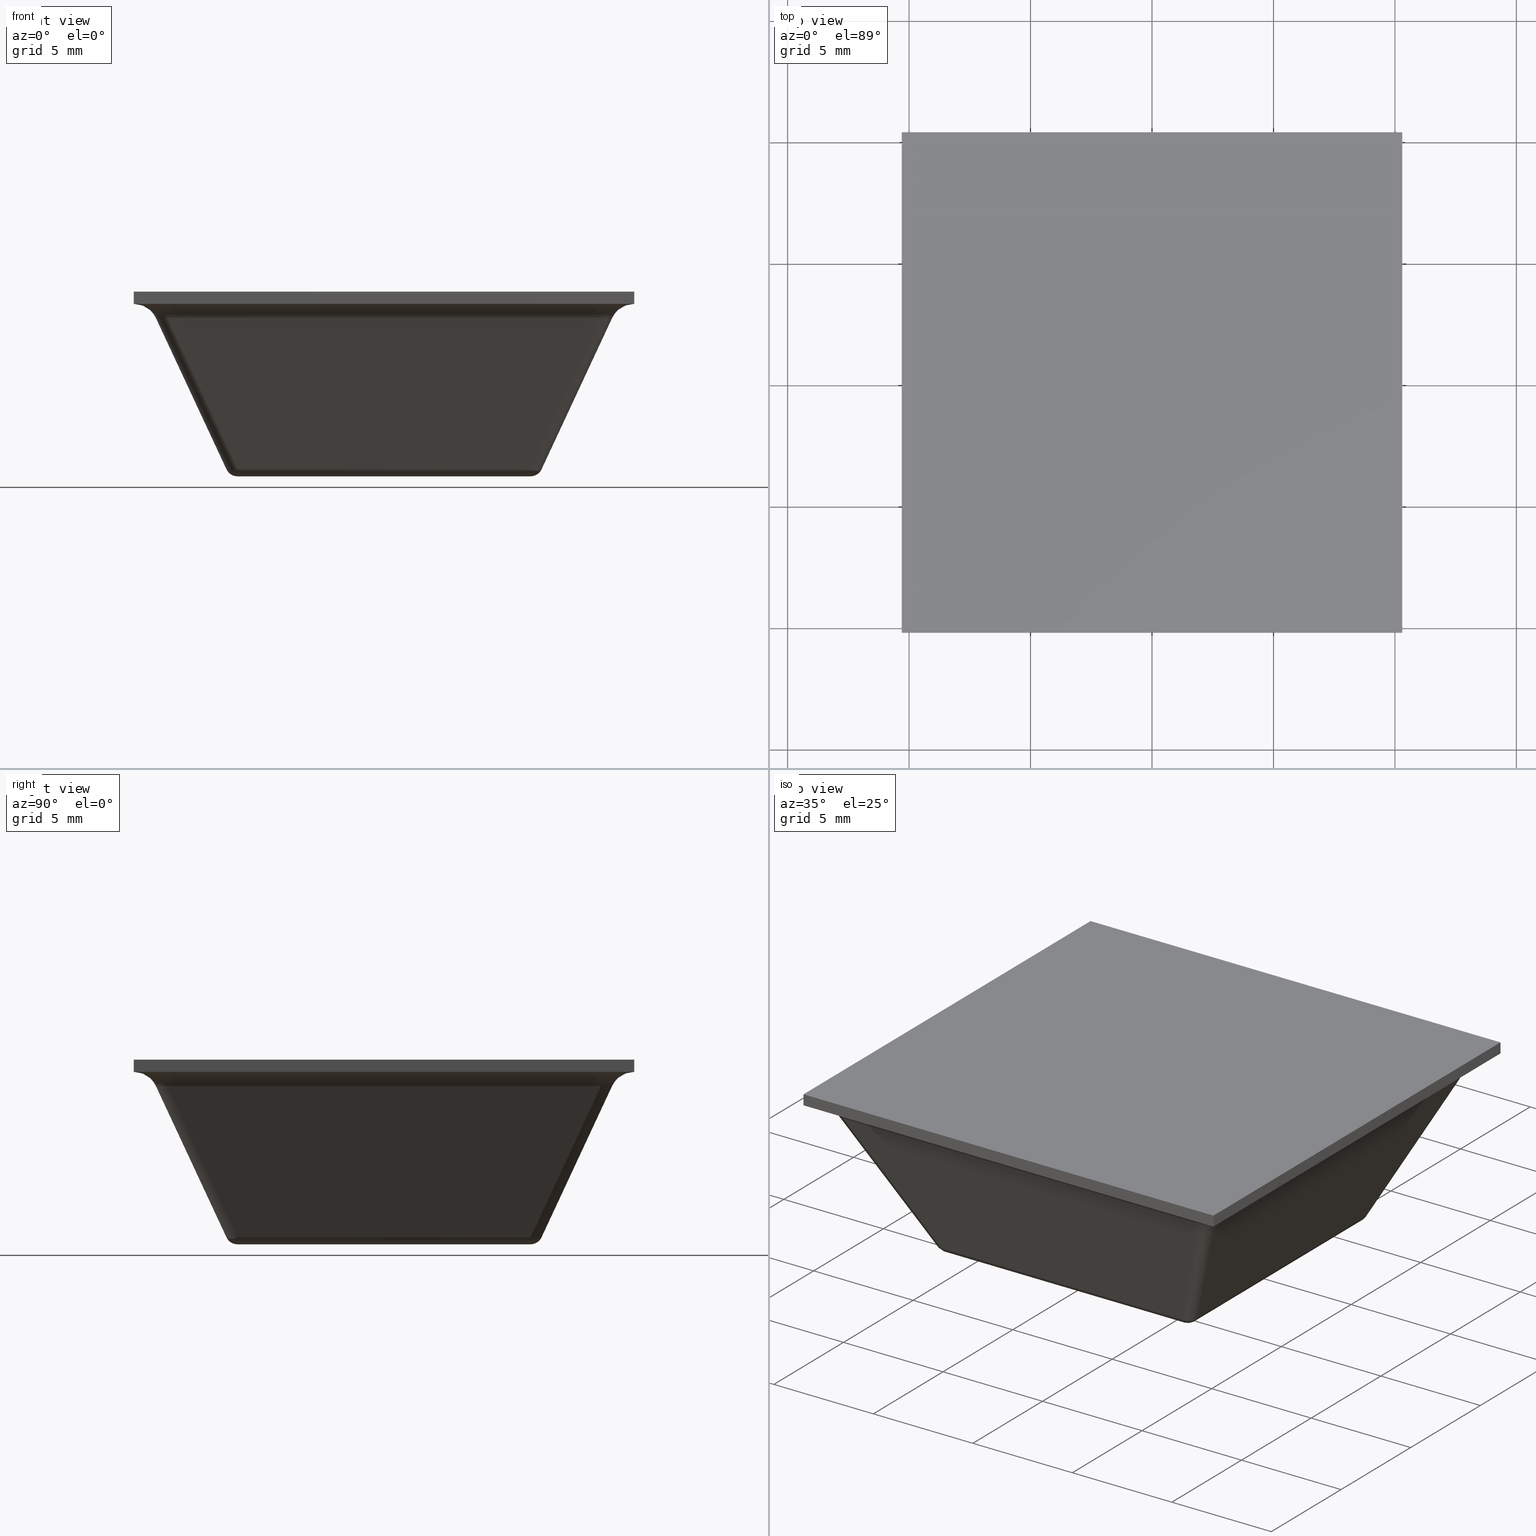
[diagram: canonical four-view strip — front | top / right | iso, engineering-drawing reading convention]
A machine part, canonical four-view strip (front | top / right | iso — engineering-drawing reading convention). The complete STEP part file that produces these views, byte-faithful:
ISO-10303-21;
HEADER;
/****************************************************************
 * Generated by software with PDE/Lib inside                    *
 * PDElib Version 4.4.1-0003, patched  Thursday August 19 11:58 *
 * International Technegroup Inc. (www.iti-oh.com)              *
 ****************************************************************/
FILE_DESCRIPTION((''),'2;1');
FILE_NAME('','2005-12-14T15:42:59',(''),(''),'','CADfix','');
FILE_SCHEMA(('AUTOMOTIVE_DESIGN'));
ENDSEC;
DATA;
#5=APPLICATION_CONTEXT('automotive design');
#6=APPLICATION_PROTOCOL_DEFINITION('Draft International Standard','automotive_design',1998,#5);
#7=PRODUCT_CONTEXT('None',#5,'mechanical');
#8=PRODUCT('rubber foot','','None',(#7));
#9=PRODUCT_RELATED_PRODUCT_CATEGORY('part','description',(#8));
#10=PRODUCT_DEFINITION_FORMATION('None','None',#8);
#11=PRODUCT_DEFINITION_CONTEXT('part definition',#5,'design');
#12=PRODUCT_DEFINITION('None','None',#10,#11);
#18=(NAMED_UNIT(*)PLANE_ANGLE_UNIT()SI_UNIT($,.RADIAN.));
#19=DIMENSIONAL_EXPONENTS(0.0,0.0,0.0,0.0,0.0,0.0,0.0);
#20=PLANE_ANGLE_MEASURE_WITH_UNIT(PLANE_ANGLE_MEASURE(0.017453292500000),#18);
#24=(CONVERSION_BASED_UNIT('DEGREE',#20)NAMED_UNIT(#19)PLANE_ANGLE_UNIT());
#28=(NAMED_UNIT(*)SI_UNIT($,.STERADIAN.)SOLID_ANGLE_UNIT());
#32=(LENGTH_UNIT()NAMED_UNIT(*)SI_UNIT(.MILLI.,.METRE.));
#34=UNCERTAINTY_MEASURE_WITH_UNIT(LENGTH_MEASURE(0.001000000000000),#32,'DISTANCE_ACCURACY_VALUE','');
#36=(GEOMETRIC_REPRESENTATION_CONTEXT(3)GLOBAL_UNCERTAINTY_ASSIGNED_CONTEXT((#34))GLOBAL_UNIT_ASSIGNED_CONTEXT((#24,#28,#32))REPRESENTATION_CONTEXT('None','None'));
#37=AXIS2_PLACEMENT_3D('',#38,#39,#40);
#38=CARTESIAN_POINT('',(0.0,0.0,0.0));
#39=DIRECTION('',(0.0,0.0,1.0));
#40=DIRECTION('',(1.0,0.0,0.0));
#41=ADVANCED_BREP_SHAPE_REPRESENTATION('',(#37,#1203),#36);
#42=PRODUCT_DEFINITION_SHAPE('','',#12);
#43=SHAPE_DEFINITION_REPRESENTATION(#42,#41);
#44=CARTESIAN_POINT('',(5.996269482723940,-6.005544566706096,0.001914263258448));
#45=CARTESIAN_POINT('',(6.092567517836272,-5.999565988669041,-0.004579188957121));
#46=CARTESIAN_POINT('',(6.390691726646412,-5.961825481680826,0.094552038508617));
#47=CARTESIAN_POINT('',(6.474167802716383,-5.923537855177091,0.294169996568977));
#48=CARTESIAN_POINT('',(6.002392777025325,-6.110580337493113,-0.003984500822961));
#49=CARTESIAN_POINT('',(6.103578696279676,-6.108630186754195,-0.011032979165017));
#50=CARTESIAN_POINT('',(6.416056060886302,-6.069072667391163,0.092870909862798));
#51=CARTESIAN_POINT('',(6.498408036753848,-6.010492529226530,0.300711534589814));
#52=CARTESIAN_POINT('',(6.002392777025325,-6.409194240097915,0.109701573345040));
#53=CARTESIAN_POINT('',(6.103578696279676,-6.419515116663916,0.107324829668168));
#54=CARTESIAN_POINT('',(6.416056060886302,-6.379957597300884,0.211228718695983));
#55=CARTESIAN_POINT('',(6.498408036753848,-6.266962309781892,0.398352810631324));
#56=CARTESIAN_POINT('',(5.980179272760339,-6.489791723331858,0.306851285621378));
#57=CARTESIAN_POINT('',(6.063822794760957,-6.501163698425035,0.311626657342289));
#58=CARTESIAN_POINT('',(6.324478035944471,-6.468166509130468,0.398298833704710));
#59=CARTESIAN_POINT('',(6.408996797294415,-6.357828846165378,0.530926460192642));
#67=(BOUNDED_SURFACE()B_SPLINE_SURFACE(2,2,((#44,#48,#52,#56),(#45,#49,#53,#57),(#46,#50,#54,#58),(#47,#51,#55,#59)),.UNSPECIFIED.,.F.,.F.,.U.)B_SPLINE_SURFACE_WITH_KNOTS((3,1,3),(3,1,3),(0.0,0.198291014408267,0.648858032309544),(0.0,0.214631105512667,0.650787210831204),.UNSPECIFIED.)GEOMETRIC_REPRESENTATION_ITEM()RATIONAL_B_SPLINE_SURFACE(((1.089238173844098,1.041093288684416,1.041093288684416,1.239908103179655),(1.048144885159683,1.0,1.0,1.198814814495239),(1.048144885159683,1.0,1.0,1.198814814495239),(1.260314713653812,1.212169828494130,1.212169828494130,1.410984642989369)))REPRESENTATION_ITEM('')SURFACE());
#68=CARTESIAN_POINT('',(6.484618936203209,-6.031465045455819,0.288690863187422));
#69=VERTEX_POINT('',#68);
#70=CARTESIAN_POINT('',(6.031465045455819,-6.484618936203209,0.288690863187422));
#71=VERTEX_POINT('',#70);
#72=CARTESIAN_POINT('',(6.484618936203209,-6.031465045455810,0.288690863187413));
#73=CARTESIAN_POINT('',(6.415947910680306,-6.415947910680301,0.141425378756803));
#74=CARTESIAN_POINT('',(6.031465045455815,-6.484618936203225,0.288690863187404));
#82=(BOUNDED_CURVE()B_SPLINE_CURVE(2,(#72,#73,#74),.UNSPECIFIED.,.F.,.U.)CURVE()GEOMETRIC_REPRESENTATION_ITEM()QUASI_UNIFORM_CURVE()RATIONAL_B_SPLINE_CURVE((1.0,0.767660799182152,1.0))REPRESENTATION_ITEM(''));
#83=EDGE_CURVE('',#69,#71,#82,.T.);
#84=ORIENTED_EDGE('',*,*,#83,.T.);
#85=CARTESIAN_POINT('',(6.031465045455790,-6.031465045455790,0.0));
#86=VERTEX_POINT('',#85);
#87=CARTESIAN_POINT('',(6.031465045455790,-6.031465045455790,0.0));
#88=CARTESIAN_POINT('',(6.031465045455790,-6.350000171250765,0.0));
#89=CARTESIAN_POINT('',(6.031465045455819,-6.484618936203209,0.288690863187422));
#97=(BOUNDED_CURVE()B_SPLINE_CURVE(2,(#87,#88,#89),.UNSPECIFIED.,.F.,.U.)CURVE()GEOMETRIC_REPRESENTATION_ITEM()QUASI_UNIFORM_CURVE()RATIONAL_B_SPLINE_CURVE((1.0,0.843391449335703,1.0))REPRESENTATION_ITEM(''));
#98=EDGE_CURVE('',#86,#71,#97,.T.);
#99=ORIENTED_EDGE('',*,*,#98,.F.);
#100=CARTESIAN_POINT('',(6.484618936203209,-6.031465045455819,0.288690863187422));
#101=CARTESIAN_POINT('',(6.350000171250765,-6.031465045455789,0.0));
#102=CARTESIAN_POINT('',(6.031465045455790,-6.031465045455790,0.0));
#110=(BOUNDED_CURVE()B_SPLINE_CURVE(2,(#100,#101,#102),.UNSPECIFIED.,.F.,.U.)CURVE()GEOMETRIC_REPRESENTATION_ITEM()QUASI_UNIFORM_CURVE()RATIONAL_B_SPLINE_CURVE((1.0,0.843391449335702,1.0))REPRESENTATION_ITEM(''));
#111=EDGE_CURVE('',#69,#86,#110,.T.);
#112=ORIENTED_EDGE('',*,*,#111,.F.);
#113=EDGE_LOOP('',(#84,#99,#112));
#114=FACE_OUTER_BOUND('',#113,.T.);
#115=ADVANCED_FACE('',(#114),#67,.T.);
#116=CARTESIAN_POINT('',(8.996691627693863,-9.466566985900762,6.684075282392949));
#117=CARTESIAN_POINT('',(5.942600196614430,-6.412475554821331,0.134555296801768));
#118=CARTESIAN_POINT('',(9.419675014113278,-9.404015585474163,6.516003081326414));
#119=CARTESIAN_POINT('',(6.365583583033842,-6.349924154394734,-0.033516904264768));
#120=CARTESIAN_POINT('',(9.468544639873944,-8.981687881144445,6.690149449325043));
#121=CARTESIAN_POINT('',(6.414453208794511,-5.927596450065014,0.140629463733860));
#129=(BOUNDED_SURFACE()B_SPLINE_SURFACE(1,2,((#116,#118,#120),(#117,#119,#121)),.UNSPECIFIED.,.F.,.F.,.U.)B_SPLINE_SURFACE_WITH_KNOTS((2,2),(3,3),(0.0,7.845454797552780),(0.0,0.989248217878956),.UNSPECIFIED.)GEOMETRIC_REPRESENTATION_ITEM()RATIONAL_B_SPLINE_SURFACE(((1.0,0.734242128086986,0.994285258528478),(1.0,0.734242128086986,0.994285258528478)))REPRESENTATION_ITEM('')SURFACE());
#130=CARTESIAN_POINT('',(9.391547127593508,-8.938393236846089,6.522618273625180));
#131=VERTEX_POINT('',#130);
#132=CARTESIAN_POINT('',(8.938393236846089,-9.391547127593508,6.522618273625180));
#133=VERTEX_POINT('',#132);
#134=CARTESIAN_POINT('',(9.391547127593507,-8.938393236846089,6.522618273625181));
#135=CARTESIAN_POINT('',(9.322876102070602,-9.322876102070602,6.375352789194563));
#136=CARTESIAN_POINT('',(8.938393236846091,-9.391547127593508,6.522618273625183));
#144=(BOUNDED_CURVE()B_SPLINE_CURVE(2,(#134,#135,#136),.UNSPECIFIED.,.F.,.U.)CURVE()GEOMETRIC_REPRESENTATION_ITEM()QUASI_UNIFORM_CURVE()RATIONAL_B_SPLINE_CURVE((1.0,0.767660799182135,1.0))REPRESENTATION_ITEM(''));
#145=EDGE_CURVE('',#131,#133,#144,.T.);
#146=ORIENTED_EDGE('',*,*,#145,.T.);
#147=CARTESIAN_POINT('',(6.031465045455819,-6.484618936203209,0.288690863187422));
#148=CARTESIAN_POINT('',(8.938393236846089,-9.391547127593508,6.522618273625180));
#149=QUASI_UNIFORM_CURVE('',1,(#147,#148),.UNSPECIFIED.,.F.,.U.);
#150=EDGE_CURVE('',#71,#133,#149,.T.);
#151=ORIENTED_EDGE('',*,*,#150,.F.);
#152=ORIENTED_EDGE('',*,*,#83,.F.);
#153=CARTESIAN_POINT('',(9.391547127593508,-8.938393236846089,6.522618273625180));
#154=CARTESIAN_POINT('',(6.484618936203209,-6.031465045455819,0.288690863187422));
#155=QUASI_UNIFORM_CURVE('',1,(#153,#154),.UNSPECIFIED.,.F.,.U.);
#156=EDGE_CURVE('',#131,#69,#155,.T.);
#157=ORIENTED_EDGE('',*,*,#156,.F.);
#158=EDGE_LOOP('',(#146,#151,#152,#157));
#159=FACE_OUTER_BOUND('',#158,.T.);
#160=ADVANCED_FACE('',(#159),#129,.T.);
#161=CARTESIAN_POINT('',(9.391547127593496,-8.938393236846084,6.522618273625191));
#162=CARTESIAN_POINT('',(9.431494190975347,-8.998313831926524,6.608285024568733));
#163=CARTESIAN_POINT('',(9.483681436343751,-9.076594699971331,6.688267893788235));
#164=CARTESIAN_POINT('',(9.608348779844020,-9.263595715221999,6.830423751200319));
#165=CARTESIAN_POINT('',(9.680822206576201,-9.372305855320169,6.892595863452959));
#166=CARTESIAN_POINT('',(9.920021505661293,-9.731104803947698,7.044982621101236));
#167=CARTESIAN_POINT('',(10.108630607140590,-10.014018456166889,7.100000000000000));
#168=CARTESIAN_POINT('',(10.297854909088329,-10.297854909088320,7.100000000000002));
#169=CARTESIAN_POINT('',(9.322876102070584,-9.322876102070584,6.375352789194570));
#170=CARTESIAN_POINT('',(9.342173457417866,-9.342173457417866,6.452974475952172));
#171=CARTESIAN_POINT('',(9.377447899508692,-9.377447899508692,6.542361407575446));
#172=CARTESIAN_POINT('',(9.486768763177395,-9.486768763177395,6.716558671589569));
#173=CARTESIAN_POINT('',(9.560446616874199,-9.560446616874199,6.801067011559592));
#174=CARTESIAN_POINT('',(9.825778169637111,-9.825778169637111,7.014625284662882));
#175=CARTESIAN_POINT('',(10.061203890053077,-10.061203890053077,7.099999999995125));
#176=CARTESIAN_POINT('',(10.297854909088320,-10.297854909088320,7.100000000000002));
#177=CARTESIAN_POINT('',(8.938393236846084,-9.391547127593496,6.522618273625191));
#178=CARTESIAN_POINT('',(8.998313831926524,-9.431494190975347,6.608285024568733));
#179=CARTESIAN_POINT('',(9.076594699971331,-9.483681436343751,6.688267893788235));
#180=CARTESIAN_POINT('',(9.263595715221999,-9.608348779844020,6.830423751200319));
#181=CARTESIAN_POINT('',(9.372305855320169,-9.680822206576201,6.892595863452959));
#182=CARTESIAN_POINT('',(9.731104803947698,-9.920021505661293,7.044982621101236));
#183=CARTESIAN_POINT('',(10.014018456166889,-10.108630607140590,7.100000000000000));
#184=CARTESIAN_POINT('',(10.297854909088320,-10.297854909088329,7.100000000000002));
#192=(BOUNDED_SURFACE()B_SPLINE_SURFACE(3,2,((#161,#169,#177),(#162,#170,#178),(#163,#171,#179),(#164,#172,#180),(#165,#173,#181),(#166,#174,#182),(#167,#175,#183),(#168,#176,#184)),.UNSPECIFIED.,.F.,.F.,.U.)B_SPLINE_SURFACE_WITH_KNOTS((4,2,2,4),(3,3),(3.577924979701457,3.861540979872265,4.145156980043073,4.712388980384690),(0.0,1.0),.UNSPECIFIED.)GEOMETRIC_REPRESENTATION_ITEM()RATIONAL_B_SPLINE_SURFACE(((1.0,0.767660799182141,1.0),(1.0,0.791268644861816,1.0),(1.0,0.819310037563873,1.0),(1.0,0.874642094959735,1.0),(1.0,0.901859323982843,1.0),(1.0,0.971329300387031,1.0),(1.0,1.000705924827562,1.0),(1.0,1.0,1.0)))REPRESENTATION_ITEM('')SURFACE());
#193=CARTESIAN_POINT('',(10.297854909088340,-10.297854909088340,7.100000000000001));
#194=VERTEX_POINT('',#193);
#195=CARTESIAN_POINT('',(10.297854909088329,-10.297854909088340,7.100000000000001));
#196=CARTESIAN_POINT('',(9.660784657498390,-9.342249531703438,7.100000000000001));
#197=CARTESIAN_POINT('',(9.391547127593494,-8.938393236846100,6.522618273625181));
#205=(BOUNDED_CURVE()B_SPLINE_CURVE(2,(#195,#196,#197),.UNSPECIFIED.,.F.,.U.)CURVE()GEOMETRIC_REPRESENTATION_ITEM()QUASI_UNIFORM_CURVE()RATIONAL_B_SPLINE_CURVE((1.0,0.843391449335732,1.0))REPRESENTATION_ITEM(''));
#206=EDGE_CURVE('',#194,#131,#205,.T.);
#207=ORIENTED_EDGE('',*,*,#206,.F.);
#208=CARTESIAN_POINT('',(8.938393236846093,-9.391547127593501,6.522618273625195));
#209=CARTESIAN_POINT('',(9.342249531703445,-9.660784657498404,7.100000000000001));
#210=CARTESIAN_POINT('',(10.297854909088340,-10.297854909088329,7.100000000000001));
#218=(BOUNDED_CURVE()B_SPLINE_CURVE(2,(#208,#209,#210),.UNSPECIFIED.,.F.,.U.)CURVE()GEOMETRIC_REPRESENTATION_ITEM()QUASI_UNIFORM_CURVE()RATIONAL_B_SPLINE_CURVE((1.0,0.843391449335737,1.0))REPRESENTATION_ITEM(''));
#219=EDGE_CURVE('',#133,#194,#218,.T.);
#220=ORIENTED_EDGE('',*,*,#219,.F.);
#221=ORIENTED_EDGE('',*,*,#145,.F.);
#222=EDGE_LOOP('',(#207,#220,#221));
#223=FACE_OUTER_BOUND('',#222,.T.);
#224=ADVANCED_FACE('',(#223),#192,.T.);
#225=CARTESIAN_POINT('',(-6.446321621679094,-5.871169254654957,0.271528381159030));
#226=CARTESIAN_POINT('',(-6.381281174195888,-5.920643441881365,0.118717447784843));
#227=CARTESIAN_POINT('',(-6.114836552699318,-5.994052507454857,-0.008750170255699));
#228=CARTESIAN_POINT('',(-5.985333874365275,-6.010734176320524,0.002564430183451));
#229=CARTESIAN_POINT('',(-6.503090066244106,-5.995263839140873,0.287543162399931));
#230=CARTESIAN_POINT('',(-6.439845641013736,-6.067640479277853,0.121925057733351));
#231=CARTESIAN_POINT('',(-6.147018943088008,-6.148318160624763,-0.018163796279227));
#232=CARTESIAN_POINT('',(-6.003210003635212,-6.154703675341187,-0.005093364820752));
#233=CARTESIAN_POINT('',(-6.503090066244106,-6.252648128882066,0.435771712471276));
#234=CARTESIAN_POINT('',(-6.439845641013736,-6.362366314882086,0.291658740096438));
#235=CARTESIAN_POINT('',(-6.147018943088008,-6.443043996228996,0.151569886083860));
#236=CARTESIAN_POINT('',(-6.003210003635212,-6.426844776584740,0.151633686751481));
#237=CARTESIAN_POINT('',(-6.428552439320692,-6.330570432979250,0.553456232452537));
#238=CARTESIAN_POINT('',(-6.363223586505342,-6.437328169758679,0.441391650886168));
#239=CARTESIAN_POINT('',(-6.104913533365037,-6.508496052685949,0.317815625951681));
#240=CARTESIAN_POINT('',(-5.979771763064810,-6.489611358081842,0.306532274570671));
#248=(BOUNDED_SURFACE()B_SPLINE_SURFACE(2,2,((#225,#229,#233,#237),(#226,#230,#234,#238),(#227,#231,#235,#239),(#228,#232,#236,#240)),.UNSPECIFIED.,.F.,.F.,.U.)B_SPLINE_SURFACE_WITH_KNOTS((3,1,3),(3,1,3),(0.0,0.364318014081733,0.639858830811669),(0.0,0.300972298546164,0.650610718629324),.UNSPECIFIED.)GEOMETRIC_REPRESENTATION_ITEM()RATIONAL_B_SPLINE_SURFACE(((1.244096139241630,1.145080905678374,1.145080905678374,1.278705766057602),(1.099015233563256,1.0,1.0,1.133624860379228),(1.099015233563256,1.0,1.0,1.133624860379228),(1.182004294228764,1.082989060665507,1.082989060665507,1.216613921044735)))REPRESENTATION_ITEM('')SURFACE());
#249=CARTESIAN_POINT('',(-6.031465045455790,-6.031465045455790,0.0));
#250=VERTEX_POINT('',#249);
#251=CARTESIAN_POINT('',(-6.484618936203209,-6.031465045455819,0.288690863187422));
#252=VERTEX_POINT('',#251);
#253=CARTESIAN_POINT('',(-6.031465045455790,-6.031465045455790,0.0));
#254=CARTESIAN_POINT('',(-6.350000171250765,-6.031465045455790,0.0));
#255=CARTESIAN_POINT('',(-6.484618936203209,-6.031465045455819,0.288690863187422));
#263=(BOUNDED_CURVE()B_SPLINE_CURVE(2,(#253,#254,#255),.UNSPECIFIED.,.F.,.U.)CURVE()GEOMETRIC_REPRESENTATION_ITEM()QUASI_UNIFORM_CURVE()RATIONAL_B_SPLINE_CURVE((1.0,0.843391449335703,1.0))REPRESENTATION_ITEM(''));
#264=EDGE_CURVE('',#250,#252,#263,.T.);
#265=ORIENTED_EDGE('',*,*,#264,.F.);
#266=CARTESIAN_POINT('',(-6.031465045455819,-6.484618936203209,0.288690863187422));
#267=VERTEX_POINT('',#266);
#268=CARTESIAN_POINT('',(-6.031465045455819,-6.484618936203209,0.288690863187422));
#269=CARTESIAN_POINT('',(-6.031465045455789,-6.350000171250765,0.0));
#270=CARTESIAN_POINT('',(-6.031465045455790,-6.031465045455790,0.0));
#278=(BOUNDED_CURVE()B_SPLINE_CURVE(2,(#268,#269,#270),.UNSPECIFIED.,.F.,.U.)CURVE()GEOMETRIC_REPRESENTATION_ITEM()QUASI_UNIFORM_CURVE()RATIONAL_B_SPLINE_CURVE((1.0,0.843391449335702,1.0))REPRESENTATION_ITEM(''));
#279=EDGE_CURVE('',#267,#250,#278,.T.);
#280=ORIENTED_EDGE('',*,*,#279,.F.);
#281=CARTESIAN_POINT('',(-6.031465045455816,-6.484618936203209,0.288690863187414));
#282=CARTESIAN_POINT('',(-6.415947910680333,-6.415947910680306,0.141425378756792));
#283=CARTESIAN_POINT('',(-6.484618936203209,-6.031465045455819,0.288690863187422));
#291=(BOUNDED_CURVE()B_SPLINE_CURVE(2,(#281,#282,#283),.UNSPECIFIED.,.F.,.U.)CURVE()GEOMETRIC_REPRESENTATION_ITEM()QUASI_UNIFORM_CURVE()RATIONAL_B_SPLINE_CURVE((1.0,0.767660799182132,1.0))REPRESENTATION_ITEM(''));
#292=EDGE_CURVE('',#267,#252,#291,.T.);
#293=ORIENTED_EDGE('',*,*,#292,.T.);
#294=EDGE_LOOP('',(#265,#280,#293));
#295=FACE_OUTER_BOUND('',#294,.T.);
#296=ADVANCED_FACE('',(#295),#248,.T.);
#297=CARTESIAN_POINT('',(-5.944417026734398,-6.414292384941111,0.138451501433058));
#298=CARTESIAN_POINT('',(-8.998508457813827,-9.468383816020538,6.687971487024228));
#299=CARTESIAN_POINT('',(-6.367400170289844,-6.351741020429443,-0.029620603131557));
#300=CARTESIAN_POINT('',(-9.421491601369274,-9.405832451508868,6.519899382459612));
#301=CARTESIAN_POINT('',(-6.416270008486036,-5.929413543143065,0.144525559934702));
#302=CARTESIAN_POINT('',(-9.470361439565465,-8.983504974222489,6.694045545525874));
#310=(BOUNDED_SURFACE()B_SPLINE_SURFACE(1,2,((#297,#299,#301),(#298,#300,#302)),.UNSPECIFIED.,.F.,.F.,.U.)B_SPLINE_SURFACE_WITH_KNOTS((2,2),(3,3),(0.0,7.845454797552769),(0.0,0.989247800832521),.UNSPECIFIED.)GEOMETRIC_REPRESENTATION_ITEM()RATIONAL_B_SPLINE_SURFACE(((1.0,0.734242240124967,0.994285039271041),(1.0,0.734242240124967,0.994285039271041)))REPRESENTATION_ITEM('')SURFACE());
#311=CARTESIAN_POINT('',(-8.938393236846089,-9.391547127593508,6.522618273625180));
#312=VERTEX_POINT('',#311);
#313=CARTESIAN_POINT('',(-9.391547127593508,-8.938393236846089,6.522618273625180));
#314=VERTEX_POINT('',#313);
#315=CARTESIAN_POINT('',(-8.938393236846089,-9.391547127593507,6.522618273625181));
#316=CARTESIAN_POINT('',(-9.322876102070598,-9.322876102070600,6.375352789194561));
#317=CARTESIAN_POINT('',(-9.391547127593505,-8.938393236846089,6.522618273625176));
#325=(BOUNDED_CURVE()B_SPLINE_CURVE(2,(#315,#316,#317),.UNSPECIFIED.,.F.,.U.)CURVE()GEOMETRIC_REPRESENTATION_ITEM()QUASI_UNIFORM_CURVE()RATIONAL_B_SPLINE_CURVE((1.0,0.767660799182136,1.0))REPRESENTATION_ITEM(''));
#326=EDGE_CURVE('',#312,#314,#325,.T.);
#327=ORIENTED_EDGE('',*,*,#326,.T.);
#328=CARTESIAN_POINT('',(-6.484618936203209,-6.031465045455819,0.288690863187422));
#329=CARTESIAN_POINT('',(-9.391547127593508,-8.938393236846089,6.522618273625180));
#330=QUASI_UNIFORM_CURVE('',1,(#328,#329),.UNSPECIFIED.,.F.,.U.);
#331=EDGE_CURVE('',#252,#314,#330,.T.);
#332=ORIENTED_EDGE('',*,*,#331,.F.);
#333=ORIENTED_EDGE('',*,*,#292,.F.);
#334=CARTESIAN_POINT('',(-8.938393236846089,-9.391547127593508,6.522618273625180));
#335=CARTESIAN_POINT('',(-6.031465045455819,-6.484618936203209,0.288690863187422));
#336=QUASI_UNIFORM_CURVE('',1,(#334,#335),.UNSPECIFIED.,.F.,.U.);
#337=EDGE_CURVE('',#312,#267,#336,.T.);
#338=ORIENTED_EDGE('',*,*,#337,.F.);
#339=EDGE_LOOP('',(#327,#332,#333,#338));
#340=FACE_OUTER_BOUND('',#339,.T.);
#341=ADVANCED_FACE('',(#340),#310,.T.);
#342=CARTESIAN_POINT('',(-8.938393236846084,-9.391547127593496,6.522618273625191));
#343=CARTESIAN_POINT('',(-8.998313831926524,-9.431494190975347,6.608285024568733));
#344=CARTESIAN_POINT('',(-9.076594699971331,-9.483681436343751,6.688267893788235));
#345=CARTESIAN_POINT('',(-9.263595715221999,-9.608348779844020,6.830423751200319));
#346=CARTESIAN_POINT('',(-9.372305855320169,-9.680822206576201,6.892595863452959));
#347=CARTESIAN_POINT('',(-9.731104803947698,-9.920021505661293,7.044982621101236));
#348=CARTESIAN_POINT('',(-10.014018456166889,-10.108630607140590,7.100000000000000));
#349=CARTESIAN_POINT('',(-10.297854909088320,-10.297854909088329,7.100000000000002));
#350=CARTESIAN_POINT('',(-9.322876102070584,-9.322876102070584,6.375352789194570));
#351=CARTESIAN_POINT('',(-9.342173457417866,-9.342173457417866,6.452974475952172));
#352=CARTESIAN_POINT('',(-9.377447899508692,-9.377447899508692,6.542361407575446));
#353=CARTESIAN_POINT('',(-9.486768763177395,-9.486768763177395,6.716558671589569));
#354=CARTESIAN_POINT('',(-9.560446616874199,-9.560446616874199,6.801067011559592));
#355=CARTESIAN_POINT('',(-9.825778169637111,-9.825778169637111,7.014625284662882));
#356=CARTESIAN_POINT('',(-10.061203890053077,-10.061203890053077,7.099999999995125));
#357=CARTESIAN_POINT('',(-10.297854909088320,-10.297854909088320,7.100000000000002));
#358=CARTESIAN_POINT('',(-9.391547127593496,-8.938393236846084,6.522618273625191));
#359=CARTESIAN_POINT('',(-9.431494190975347,-8.998313831926524,6.608285024568733));
#360=CARTESIAN_POINT('',(-9.483681436343751,-9.076594699971331,6.688267893788235));
#361=CARTESIAN_POINT('',(-9.608348779844020,-9.263595715221999,6.830423751200319));
#362=CARTESIAN_POINT('',(-9.680822206576201,-9.372305855320169,6.892595863452959));
#363=CARTESIAN_POINT('',(-9.920021505661293,-9.731104803947698,7.044982621101236));
#364=CARTESIAN_POINT('',(-10.108630607140590,-10.014018456166889,7.100000000000000));
#365=CARTESIAN_POINT('',(-10.297854909088329,-10.297854909088320,7.100000000000002));
#373=(BOUNDED_SURFACE()B_SPLINE_SURFACE(3,2,((#342,#350,#358),(#343,#351,#359),(#344,#352,#360),(#345,#353,#361),(#346,#354,#362),(#347,#355,#363),(#348,#356,#364),(#349,#357,#365)),.UNSPECIFIED.,.F.,.F.,.U.)B_SPLINE_SURFACE_WITH_KNOTS((4,2,2,4),(3,3),(3.577924979701457,3.861540979872265,4.145156980043073,4.712388980384690),(0.0,1.0),.UNSPECIFIED.)GEOMETRIC_REPRESENTATION_ITEM()RATIONAL_B_SPLINE_SURFACE(((1.0,0.767660799182141,1.0),(1.0,0.791268644861816,1.0),(1.0,0.819310037563873,1.0),(1.0,0.874642094959735,1.0),(1.0,0.901859323982843,1.0),(1.0,0.971329300387031,1.0),(1.0,1.000705924827562,1.0),(1.0,1.0,1.0)))REPRESENTATION_ITEM('')SURFACE());
#374=CARTESIAN_POINT('',(-10.297854909088340,-10.297854909088340,7.100000000000001));
#375=VERTEX_POINT('',#374);
#376=CARTESIAN_POINT('',(-10.297854909088340,-10.297854909088329,7.100000000000001));
#377=CARTESIAN_POINT('',(-9.342249531703438,-9.660784657498390,7.100000000000001));
#378=CARTESIAN_POINT('',(-8.938393236846100,-9.391547127593494,6.522618273625181));
#386=(BOUNDED_CURVE()B_SPLINE_CURVE(2,(#376,#377,#378),.UNSPECIFIED.,.F.,.U.)CURVE()GEOMETRIC_REPRESENTATION_ITEM()QUASI_UNIFORM_CURVE()RATIONAL_B_SPLINE_CURVE((1.0,0.843391449335732,1.0))REPRESENTATION_ITEM(''));
#387=EDGE_CURVE('',#375,#312,#386,.T.);
#388=ORIENTED_EDGE('',*,*,#387,.F.);
#389=CARTESIAN_POINT('',(-9.391547127593501,-8.938393236846093,6.522618273625195));
#390=CARTESIAN_POINT('',(-9.660784657498404,-9.342249531703445,7.100000000000001));
#391=CARTESIAN_POINT('',(-10.297854909088329,-10.297854909088340,7.100000000000001));
#399=(BOUNDED_CURVE()B_SPLINE_CURVE(2,(#389,#390,#391),.UNSPECIFIED.,.F.,.U.)CURVE()GEOMETRIC_REPRESENTATION_ITEM()QUASI_UNIFORM_CURVE()RATIONAL_B_SPLINE_CURVE((1.0,0.843391449335737,1.0))REPRESENTATION_ITEM(''));
#400=EDGE_CURVE('',#314,#375,#399,.T.);
#401=ORIENTED_EDGE('',*,*,#400,.F.);
#402=ORIENTED_EDGE('',*,*,#326,.F.);
#403=EDGE_LOOP('',(#388,#401,#402));
#404=FACE_OUTER_BOUND('',#403,.T.);
#405=ADVANCED_FACE('',(#404),#373,.T.);
#406=CARTESIAN_POINT('',(-9.391547127593499,8.938393236846091,6.522618273625199));
#407=CARTESIAN_POINT('',(-9.431494190975405,8.998313831926248,6.608285024568855));
#408=CARTESIAN_POINT('',(-9.483681436343744,9.076594699971482,6.688267893788230));
#409=CARTESIAN_POINT('',(-9.608348779844031,9.263595715221856,6.830423751200332));
#410=CARTESIAN_POINT('',(-9.680822206576282,9.372305855320178,6.892595863453011));
#411=CARTESIAN_POINT('',(-9.920021505661140,9.731104803947703,7.044982621101137));
#412=CARTESIAN_POINT('',(-10.108630607140711,10.014018456166900,7.100000000000000));
#413=CARTESIAN_POINT('',(-10.297854909088329,10.297854909088320,7.100000000000002));
#414=CARTESIAN_POINT('',(-9.322876102070586,9.322876102070586,6.375352789194577));
#415=CARTESIAN_POINT('',(-9.342173457417895,9.342173457417895,6.452974475952283));
#416=CARTESIAN_POINT('',(-9.377447899508843,9.377447899508843,6.542361407575229));
#417=CARTESIAN_POINT('',(-9.486768763177249,9.486768763177249,6.716558671589794));
#418=CARTESIAN_POINT('',(-9.560446616874362,9.560446616874362,6.801067011559354));
#419=CARTESIAN_POINT('',(-9.825778169636793,9.825778169636793,7.014625284663367));
#420=CARTESIAN_POINT('',(-10.061203890053314,10.061203890053314,7.099999999995124));
#421=CARTESIAN_POINT('',(-10.297854909088320,10.297854909088320,7.100000000000002));
#422=CARTESIAN_POINT('',(-8.938393236846091,9.391547127593499,6.522618273625199));
#423=CARTESIAN_POINT('',(-8.998313831926248,9.431494190975405,6.608285024568855));
#424=CARTESIAN_POINT('',(-9.076594699971482,9.483681436343744,6.688267893788230));
#425=CARTESIAN_POINT('',(-9.263595715221856,9.608348779844031,6.830423751200332));
#426=CARTESIAN_POINT('',(-9.372305855320178,9.680822206576282,6.892595863453011));
#427=CARTESIAN_POINT('',(-9.731104803947703,9.920021505661140,7.044982621101137));
#428=CARTESIAN_POINT('',(-10.014018456166900,10.108630607140711,7.100000000000000));
#429=CARTESIAN_POINT('',(-10.297854909088320,10.297854909088329,7.100000000000002));
#437=(BOUNDED_SURFACE()B_SPLINE_SURFACE(3,2,((#406,#414,#422),(#407,#415,#423),(#408,#416,#424),(#409,#417,#425),(#410,#418,#426),(#411,#419,#427),(#412,#420,#428),(#413,#421,#429)),.UNSPECIFIED.,.F.,.F.,.U.)B_SPLINE_SURFACE_WITH_KNOTS((4,2,2,4),(3,3),(6.719517633291260,7.003133633462065,7.286749633632871,7.853981633974483),(0.0,1.0),.UNSPECIFIED.)GEOMETRIC_REPRESENTATION_ITEM()RATIONAL_B_SPLINE_SURFACE(((1.0,0.767660799182145,1.0),(1.0,0.791268644861790,1.0),(1.0,0.819310037563912,1.0),(1.0,0.874642094959698,1.0),(1.0,0.901859323982784,1.0),(1.0,0.971329300387156,1.0),(1.0,1.000705924827468,1.0),(1.0,1.0,1.0)))REPRESENTATION_ITEM('')SURFACE());
#438=CARTESIAN_POINT('',(-10.297854909088340,10.297854909088340,7.100000000000001));
#439=VERTEX_POINT('',#438);
#440=CARTESIAN_POINT('',(-9.391547127593508,8.938393236846331,6.522618273625180));
#441=VERTEX_POINT('',#440);
#442=CARTESIAN_POINT('',(-10.297854909088329,10.297854909088340,7.100000000000001));
#443=CARTESIAN_POINT('',(-9.660784657498573,9.342249531703715,7.100000000000001));
#444=CARTESIAN_POINT('',(-9.391547127593508,8.938393236846331,6.522618273625180));
#452=(BOUNDED_CURVE()B_SPLINE_CURVE(2,(#442,#443,#444),.UNSPECIFIED.,.F.,.U.)CURVE()GEOMETRIC_REPRESENTATION_ITEM()QUASI_UNIFORM_CURVE()RATIONAL_B_SPLINE_CURVE((1.0,0.843391449335802,1.0))REPRESENTATION_ITEM(''));
#453=EDGE_CURVE('',#439,#441,#452,.T.);
#454=ORIENTED_EDGE('',*,*,#453,.F.);
#455=CARTESIAN_POINT('',(-8.938393236846119,9.391547127593508,6.522618273625180));
#456=VERTEX_POINT('',#455);
#457=CARTESIAN_POINT('',(-8.938393236846119,9.391547127593508,6.522618273625180));
#458=CARTESIAN_POINT('',(-9.342249531703477,9.660784657498427,7.100000000000001));
#459=CARTESIAN_POINT('',(-10.297854909088340,10.297854909088329,7.100000000000001));
#467=(BOUNDED_CURVE()B_SPLINE_CURVE(2,(#457,#458,#459),.UNSPECIFIED.,.F.,.U.)CURVE()GEOMETRIC_REPRESENTATION_ITEM()QUASI_UNIFORM_CURVE()RATIONAL_B_SPLINE_CURVE((1.0,0.843391449335745,1.0))REPRESENTATION_ITEM(''));
#468=EDGE_CURVE('',#456,#439,#467,.T.);
#469=ORIENTED_EDGE('',*,*,#468,.F.);
#470=CARTESIAN_POINT('',(-8.938393236846119,9.391547127593496,6.522618273625162));
#471=CARTESIAN_POINT('',(-9.322876102070639,9.322876102070813,6.375352789195016));
#472=CARTESIAN_POINT('',(-9.391547127593508,8.938393236846331,6.522618273625180));
#480=(BOUNDED_CURVE()B_SPLINE_CURVE(2,(#470,#471,#472),.UNSPECIFIED.,.F.,.U.)CURVE()GEOMETRIC_REPRESENTATION_ITEM()QUASI_UNIFORM_CURVE()RATIONAL_B_SPLINE_CURVE((1.0,0.767660799182282,1.0))REPRESENTATION_ITEM(''));
#481=EDGE_CURVE('',#456,#441,#480,.T.);
#482=ORIENTED_EDGE('',*,*,#481,.T.);
#483=EDGE_LOOP('',(#454,#469,#482));
#484=FACE_OUTER_BOUND('',#483,.T.);
#485=ADVANCED_FACE('',(#484),#437,.T.);
#486=CARTESIAN_POINT('',(-8.996691627693735,9.466566985900878,6.684075282393234));
#487=CARTESIAN_POINT('',(-5.942600196614210,6.412475554821352,0.134555296801855));
#488=CARTESIAN_POINT('',(-9.419675014113139,9.404015585474472,6.516003081326612));
#489=CARTESIAN_POINT('',(-6.365583583033615,6.349924154394945,-0.033516904264768));
#490=CARTESIAN_POINT('',(-9.468544639873997,8.981687881144742,6.690149449325155));
#491=CARTESIAN_POINT('',(-6.414453208794474,5.927596450065215,0.140629463733777));
#499=(BOUNDED_SURFACE()B_SPLINE_SURFACE(1,2,((#486,#488,#490),(#487,#489,#491)),.UNSPECIFIED.,.F.,.F.,.U.)B_SPLINE_SURFACE_WITH_KNOTS((2,2),(3,3),(0.0,7.845454797553018),(0.0,0.989248217878956),.UNSPECIFIED.)GEOMETRIC_REPRESENTATION_ITEM()RATIONAL_B_SPLINE_SURFACE(((1.0,0.734242128086986,0.994285258528478),(1.0,0.734242128086986,0.994285258528478)))REPRESENTATION_ITEM('')SURFACE());
#500=CARTESIAN_POINT('',(-6.031465045455819,6.484618936203209,0.288690863187422));
#501=VERTEX_POINT('',#500);
#502=CARTESIAN_POINT('',(-6.484618936203209,6.031465045455819,0.288690863187422));
#503=VERTEX_POINT('',#502);
#504=CARTESIAN_POINT('',(-6.031465045455819,6.484618936203209,0.288690863187422));
#505=CARTESIAN_POINT('',(-6.415947910680280,6.415947910680303,0.141425378756809));
#506=CARTESIAN_POINT('',(-6.484618936203205,6.031465045455815,0.288690863187413));
#514=(BOUNDED_CURVE()B_SPLINE_CURVE(2,(#504,#505,#506),.UNSPECIFIED.,.F.,.U.)CURVE()GEOMETRIC_REPRESENTATION_ITEM()QUASI_UNIFORM_CURVE()RATIONAL_B_SPLINE_CURVE((1.0,0.767660799182153,1.0))REPRESENTATION_ITEM(''));
#515=EDGE_CURVE('',#501,#503,#514,.T.);
#516=ORIENTED_EDGE('',*,*,#515,.T.);
#517=CARTESIAN_POINT('',(-9.391547127593508,8.938393236846331,6.522618273625180));
#518=CARTESIAN_POINT('',(-6.484618936203209,6.031465045455819,0.288690863187422));
#519=QUASI_UNIFORM_CURVE('',1,(#517,#518),.UNSPECIFIED.,.F.,.U.);
#520=EDGE_CURVE('',#441,#503,#519,.T.);
#521=ORIENTED_EDGE('',*,*,#520,.F.);
#522=ORIENTED_EDGE('',*,*,#481,.F.);
#523=CARTESIAN_POINT('',(-6.031465045455819,6.484618936203209,0.288690863187422));
#524=CARTESIAN_POINT('',(-8.938393236846119,9.391547127593508,6.522618273625180));
#525=QUASI_UNIFORM_CURVE('',1,(#523,#524),.UNSPECIFIED.,.F.,.U.);
#526=EDGE_CURVE('',#501,#456,#525,.T.);
#527=ORIENTED_EDGE('',*,*,#526,.F.);
#528=EDGE_LOOP('',(#516,#521,#522,#527));
#529=FACE_OUTER_BOUND('',#528,.T.);
#530=ADVANCED_FACE('',(#529),#499,.T.);
#531=CARTESIAN_POINT('',(-6.443409416231578,6.310671927139144,0.548428840650993));
#532=CARTESIAN_POINT('',(-6.373245327280647,6.434981836984494,0.428572970919504));
#533=CARTESIAN_POINT('',(-6.100236501329886,6.506229802672334,0.316736212923820));
#534=CARTESIAN_POINT('',(-5.984420954124063,6.490912067118149,0.308439858643923));
#535=CARTESIAN_POINT('',(-6.504142580831663,6.239954351840020,0.439529855541394));
#536=CARTESIAN_POINT('',(-6.436508842938402,6.366129724340051,0.287395412464140));
#537=CARTESIAN_POINT('',(-6.132670797291013,6.445423287746127,0.162929612273940));
#538=CARTESIAN_POINT('',(-6.002545218516145,6.432355220798953,0.163543284689727));
#539=CARTESIAN_POINT('',(-6.504142580831663,5.998158271363494,0.285488562195690));
#540=CARTESIAN_POINT('',(-6.436508842938402,6.082715061889909,0.106840123598760));
#541=CARTESIAN_POINT('',(-6.132670797291013,6.162008625295985,-0.017625676591440));
#542=CARTESIAN_POINT('',(-6.002545218516145,6.166975253728653,-0.005522621072620));
#543=CARTESIAN_POINT('',(-6.443409230480495,5.869575565237684,0.267419294396454));
#544=CARTESIAN_POINT('',(-6.373245136673546,5.925666348795171,0.104103089219934));
#545=CARTESIAN_POINT('',(-6.100236403608363,5.996914290242373,-0.007733630725618));
#546=CARTESIAN_POINT('',(-5.984420899162469,6.010906907353599,0.002642772991783));
#554=(BOUNDED_SURFACE()B_SPLINE_SURFACE(2,2,((#531,#535,#539,#543),(#532,#536,#540,#544),(#533,#537,#541,#545),(#534,#538,#542,#546)),.UNSPECIFIED.,.F.,.F.,.U.)B_SPLINE_SURFACE_WITH_KNOTS((3,1,3),(3,1,3),(0.0,0.396927420410857,0.646336596826220),(0.0,0.321502987806498,0.643006514634417),.UNSPECIFIED.)GEOMETRIC_REPRESENTATION_ITEM()RATIONAL_B_SPLINE_SURFACE(((1.285046543252530,1.172122649348137,1.172122649348137,1.285046921901881),(1.112923893904393,1.0,1.0,1.112924272553744),(1.112923893904393,1.0,1.0,1.112924272553744),(1.180881907385740,1.067958013481347,1.067958013481347,1.180882286035091)))REPRESENTATION_ITEM('')SURFACE());
#555=CARTESIAN_POINT('',(-6.031465045455790,6.031465045455790,0.0));
#556=VERTEX_POINT('',#555);
#557=CARTESIAN_POINT('',(-6.031465045455790,6.031465045455790,0.0));
#558=CARTESIAN_POINT('',(-6.031465045455790,6.350000171250765,0.0));
#559=CARTESIAN_POINT('',(-6.031465045455819,6.484618936203209,0.288690863187422));
#567=(BOUNDED_CURVE()B_SPLINE_CURVE(2,(#557,#558,#559),.UNSPECIFIED.,.F.,.U.)CURVE()GEOMETRIC_REPRESENTATION_ITEM()QUASI_UNIFORM_CURVE()RATIONAL_B_SPLINE_CURVE((1.0,0.843391449335703,1.0))REPRESENTATION_ITEM(''));
#568=EDGE_CURVE('',#556,#501,#567,.T.);
#569=ORIENTED_EDGE('',*,*,#568,.F.);
#570=CARTESIAN_POINT('',(-6.484618936203209,6.031465045455819,0.288690863187422));
#571=CARTESIAN_POINT('',(-6.350000171250765,6.031465045455789,0.0));
#572=CARTESIAN_POINT('',(-6.031465045455790,6.031465045455790,0.0));
#580=(BOUNDED_CURVE()B_SPLINE_CURVE(2,(#570,#571,#572),.UNSPECIFIED.,.F.,.U.)CURVE()GEOMETRIC_REPRESENTATION_ITEM()QUASI_UNIFORM_CURVE()RATIONAL_B_SPLINE_CURVE((1.0,0.843391449335702,1.0))REPRESENTATION_ITEM(''));
#581=EDGE_CURVE('',#503,#556,#580,.T.);
#582=ORIENTED_EDGE('',*,*,#581,.F.);
#583=ORIENTED_EDGE('',*,*,#515,.F.);
#584=EDGE_LOOP('',(#569,#582,#583));
#585=FACE_OUTER_BOUND('',#584,.T.);
#586=ADVANCED_FACE('',(#585),#554,.T.);
#587=CARTESIAN_POINT('',(8.938393236846091,9.391547127593499,6.522618273625199));
#588=CARTESIAN_POINT('',(8.998313831926248,9.431494190975405,6.608285024568855));
#589=CARTESIAN_POINT('',(9.076594699971482,9.483681436343744,6.688267893788230));
#590=CARTESIAN_POINT('',(9.263595715221856,9.608348779844031,6.830423751200332));
#591=CARTESIAN_POINT('',(9.372305855320178,9.680822206576282,6.892595863453011));
#592=CARTESIAN_POINT('',(9.731104803947703,9.920021505661140,7.044982621101137));
#593=CARTESIAN_POINT('',(10.014018456166900,10.108630607140711,7.100000000000000));
#594=CARTESIAN_POINT('',(10.297854909088320,10.297854909088329,7.100000000000002));
#595=CARTESIAN_POINT('',(9.322876102070586,9.322876102070586,6.375352789194577));
#596=CARTESIAN_POINT('',(9.342173457417895,9.342173457417895,6.452974475952283));
#597=CARTESIAN_POINT('',(9.377447899508843,9.377447899508843,6.542361407575229));
#598=CARTESIAN_POINT('',(9.486768763177249,9.486768763177249,6.716558671589794));
#599=CARTESIAN_POINT('',(9.560446616874362,9.560446616874362,6.801067011559354));
#600=CARTESIAN_POINT('',(9.825778169636793,9.825778169636793,7.014625284663367));
#601=CARTESIAN_POINT('',(10.061203890053314,10.061203890053314,7.099999999995124));
#602=CARTESIAN_POINT('',(10.297854909088320,10.297854909088320,7.100000000000002));
#603=CARTESIAN_POINT('',(9.391547127593499,8.938393236846091,6.522618273625199));
#604=CARTESIAN_POINT('',(9.431494190975405,8.998313831926248,6.608285024568855));
#605=CARTESIAN_POINT('',(9.483681436343744,9.076594699971482,6.688267893788230));
#606=CARTESIAN_POINT('',(9.608348779844031,9.263595715221856,6.830423751200332));
#607=CARTESIAN_POINT('',(9.680822206576282,9.372305855320178,6.892595863453011));
#608=CARTESIAN_POINT('',(9.920021505661140,9.731104803947703,7.044982621101137));
#609=CARTESIAN_POINT('',(10.108630607140711,10.014018456166900,7.100000000000000));
#610=CARTESIAN_POINT('',(10.297854909088329,10.297854909088320,7.100000000000002));
#618=(BOUNDED_SURFACE()B_SPLINE_SURFACE(3,2,((#587,#595,#603),(#588,#596,#604),(#589,#597,#605),(#590,#598,#606),(#591,#599,#607),(#592,#600,#608),(#593,#601,#609),(#594,#602,#610)),.UNSPECIFIED.,.F.,.F.,.U.)B_SPLINE_SURFACE_WITH_KNOTS((4,2,2,4),(3,3),(6.719517633291260,7.003133633462065,7.286749633632871,7.853981633974483),(0.0,1.0),.UNSPECIFIED.)GEOMETRIC_REPRESENTATION_ITEM()RATIONAL_B_SPLINE_SURFACE(((1.0,0.767660799182145,1.0),(1.0,0.791268644861790,1.0),(1.0,0.819310037563912,1.0),(1.0,0.874642094959698,1.0),(1.0,0.901859323982784,1.0),(1.0,0.971329300387156,1.0),(1.0,1.000705924827468,1.0),(1.0,1.0,1.0)))REPRESENTATION_ITEM('')SURFACE());
#619=CARTESIAN_POINT('',(10.297854909088340,10.297854909088340,7.100000000000001));
#620=VERTEX_POINT('',#619);
#621=CARTESIAN_POINT('',(8.938393236846331,9.391547127593508,6.522618273625180));
#622=VERTEX_POINT('',#621);
#623=CARTESIAN_POINT('',(10.297854909088340,10.297854909088329,7.100000000000001));
#624=CARTESIAN_POINT('',(9.342249531703715,9.660784657498573,7.100000000000001));
#625=CARTESIAN_POINT('',(8.938393236846331,9.391547127593508,6.522618273625180));
#633=(BOUNDED_CURVE()B_SPLINE_CURVE(2,(#623,#624,#625),.UNSPECIFIED.,.F.,.U.)CURVE()GEOMETRIC_REPRESENTATION_ITEM()QUASI_UNIFORM_CURVE()RATIONAL_B_SPLINE_CURVE((1.0,0.843391449335802,1.0))REPRESENTATION_ITEM(''));
#634=EDGE_CURVE('',#620,#622,#633,.T.);
#635=ORIENTED_EDGE('',*,*,#634,.F.);
#636=CARTESIAN_POINT('',(9.391547127593508,8.938393236846119,6.522618273625180));
#637=VERTEX_POINT('',#636);
#638=CARTESIAN_POINT('',(9.391547127593508,8.938393236846119,6.522618273625180));
#639=CARTESIAN_POINT('',(9.660784657498427,9.342249531703477,7.100000000000001));
#640=CARTESIAN_POINT('',(10.297854909088329,10.297854909088340,7.100000000000001));
#648=(BOUNDED_CURVE()B_SPLINE_CURVE(2,(#638,#639,#640),.UNSPECIFIED.,.F.,.U.)CURVE()GEOMETRIC_REPRESENTATION_ITEM()QUASI_UNIFORM_CURVE()RATIONAL_B_SPLINE_CURVE((1.0,0.843391449335745,1.0))REPRESENTATION_ITEM(''));
#649=EDGE_CURVE('',#637,#620,#648,.T.);
#650=ORIENTED_EDGE('',*,*,#649,.F.);
#651=CARTESIAN_POINT('',(9.391547127593508,8.938393236846119,6.522618273625180));
#652=CARTESIAN_POINT('',(9.322876102070811,9.322876102070639,6.375352789195015));
#653=CARTESIAN_POINT('',(8.938393236846331,9.391547127593508,6.522618273625180));
#661=(BOUNDED_CURVE()B_SPLINE_CURVE(2,(#651,#652,#653),.UNSPECIFIED.,.F.,.U.)CURVE()GEOMETRIC_REPRESENTATION_ITEM()QUASI_UNIFORM_CURVE()RATIONAL_B_SPLINE_CURVE((1.0,0.767660799182282,1.0))REPRESENTATION_ITEM(''));
#662=EDGE_CURVE('',#637,#622,#661,.T.);
#663=ORIENTED_EDGE('',*,*,#662,.T.);
#664=EDGE_LOOP('',(#635,#650,#663));
#665=FACE_OUTER_BOUND('',#664,.T.);
#666=ADVANCED_FACE('',(#665),#618,.T.);
#667=CARTESIAN_POINT('',(9.466218331302168,8.999010402245478,6.683156600340205));
#668=CARTESIAN_POINT('',(6.412126900222639,5.944918971165950,0.133636614748822));
#669=CARTESIAN_POINT('',(9.402858347276670,9.413557837294663,6.519395196873433));
#670=CARTESIAN_POINT('',(6.348766916197144,6.359466406215135,-0.030124788717948));
#671=CARTESIAN_POINT('',(8.988659863423290,9.467685683747300,6.687298898318456));
#672=CARTESIAN_POINT('',(5.934568432343763,6.413594252667775,0.137778912727074));
#680=(BOUNDED_SURFACE()B_SPLINE_SURFACE(1,2,((#667,#669,#671),(#668,#670,#672)),.UNSPECIFIED.,.F.,.F.,.U.)B_SPLINE_SURFACE_WITH_KNOTS((2,2),(3,3),(0.0,7.845454797553023),(0.0,1.0),.UNSPECIFIED.)GEOMETRIC_REPRESENTATION_ITEM()RATIONAL_B_SPLINE_SURFACE(((1.0,0.743144825477394,1.0),(1.0,0.743144825477394,1.0)))REPRESENTATION_ITEM('')SURFACE());
#681=CARTESIAN_POINT('',(6.484618936203209,6.031465045455819,0.288690863187422));
#682=VERTEX_POINT('',#681);
#683=CARTESIAN_POINT('',(6.031465045455819,6.484618936203209,0.288690863187422));
#684=VERTEX_POINT('',#683);
#685=CARTESIAN_POINT('',(6.484618936203209,6.031465045455819,0.288690863187422));
#686=CARTESIAN_POINT('',(6.415947910680303,6.415947910680281,0.141425378756808));
#687=CARTESIAN_POINT('',(6.031465045455815,6.484618936203205,0.288690863187413));
#695=(BOUNDED_CURVE()B_SPLINE_CURVE(2,(#685,#686,#687),.UNSPECIFIED.,.F.,.U.)CURVE()GEOMETRIC_REPRESENTATION_ITEM()QUASI_UNIFORM_CURVE()RATIONAL_B_SPLINE_CURVE((1.0,0.767660799182153,1.0))REPRESENTATION_ITEM(''));
#696=EDGE_CURVE('',#682,#684,#695,.T.);
#697=ORIENTED_EDGE('',*,*,#696,.T.);
#698=CARTESIAN_POINT('',(8.938393236846331,9.391547127593508,6.522618273625180));
#699=CARTESIAN_POINT('',(6.031465045455819,6.484618936203209,0.288690863187422));
#700=QUASI_UNIFORM_CURVE('',1,(#698,#699),.UNSPECIFIED.,.F.,.U.);
#701=EDGE_CURVE('',#622,#684,#700,.T.);
#702=ORIENTED_EDGE('',*,*,#701,.F.);
#703=ORIENTED_EDGE('',*,*,#662,.F.);
#704=CARTESIAN_POINT('',(6.484618936203209,6.031465045455819,0.288690863187422));
#705=CARTESIAN_POINT('',(9.391547127593508,8.938393236846119,6.522618273625180));
#706=QUASI_UNIFORM_CURVE('',1,(#704,#705),.UNSPECIFIED.,.F.,.U.);
#707=EDGE_CURVE('',#682,#637,#706,.T.);
#708=ORIENTED_EDGE('',*,*,#707,.F.);
#709=EDGE_LOOP('',(#697,#702,#703,#708));
#710=FACE_OUTER_BOUND('',#709,.T.);
#711=ADVANCED_FACE('',(#710),#680,.T.);
#712=CARTESIAN_POINT('',(5.979771742497381,6.489611345427126,0.306532250098814));
#713=CARTESIAN_POINT('',(6.104913527954991,6.508496046489309,0.317815596756868));
#714=CARTESIAN_POINT('',(6.363223597986290,6.437328158908345,0.441391629772041));
#715=CARTESIAN_POINT('',(6.428552450549999,6.330570420988106,0.553456216132661));
#716=CARTESIAN_POINT('',(6.003209976368424,6.426844761680128,0.151633679948813));
#717=CARTESIAN_POINT('',(6.147018930141443,6.443043986980756,0.151569872509882));
#718=CARTESIAN_POINT('',(6.439845641629653,6.362366301897200,0.291658733010778));
#719=CARTESIAN_POINT('',(6.503090066652175,6.252648116982628,0.435771706955890));
#720=CARTESIAN_POINT('',(6.003209976368423,6.154703677114848,-0.005093362018340));
#721=CARTESIAN_POINT('',(6.147018930141443,6.148318164801378,-0.018163802121781));
#722=CARTESIAN_POINT('',(6.439845641629653,6.067640479717822,0.121925058379116));
#723=CARTESIAN_POINT('',(6.503090066652175,5.995263839206303,0.287543163775159));
#724=CARTESIAN_POINT('',(5.985333849786801,6.010734180685132,0.002564432280913));
#725=CARTESIAN_POINT('',(6.114836541181049,5.994052511955784,-0.008750175967949));
#726=CARTESIAN_POINT('',(6.381281175232882,5.920643442923149,0.118717448079056));
#727=CARTESIAN_POINT('',(6.446321622570885,5.871169255353538,0.271528382288212));
#735=(BOUNDED_SURFACE()B_SPLINE_SURFACE(2,2,((#712,#716,#720,#724),(#713,#717,#721,#725),(#714,#718,#722,#726),(#715,#719,#723,#727)),.UNSPECIFIED.,.F.,.F.,.U.)B_SPLINE_SURFACE_WITH_KNOTS((3,1,3),(3,1,3),(0.0,0.275540843955186,0.639858857975381),(0.0,0.349638390442800,0.650610686480443),.UNSPECIFIED.)GEOMETRIC_REPRESENTATION_ITEM()RATIONAL_B_SPLINE_SURFACE(((1.216613916462147,1.082989077706427,1.082989077706427,1.182004310384160),(1.133624838755721,1.0,1.0,1.099015232677734),(1.133624838755721,1.0,1.0,1.099015232677734),(1.278705745505997,1.145080906750276,1.145080906750276,1.244096139428010)))REPRESENTATION_ITEM('')SURFACE());
#736=CARTESIAN_POINT('',(6.031465045455790,6.031465045455790,0.0));
#737=VERTEX_POINT('',#736);
#738=CARTESIAN_POINT('',(6.031465045455790,6.031465045455790,0.0));
#739=CARTESIAN_POINT('',(6.350000171250765,6.031465045455790,0.0));
#740=CARTESIAN_POINT('',(6.484618936203209,6.031465045455819,0.288690863187422));
#748=(BOUNDED_CURVE()B_SPLINE_CURVE(2,(#738,#739,#740),.UNSPECIFIED.,.F.,.U.)CURVE()GEOMETRIC_REPRESENTATION_ITEM()QUASI_UNIFORM_CURVE()RATIONAL_B_SPLINE_CURVE((1.0,0.843391449335703,1.0))REPRESENTATION_ITEM(''));
#749=EDGE_CURVE('',#737,#682,#748,.T.);
#750=ORIENTED_EDGE('',*,*,#749,.F.);
#751=CARTESIAN_POINT('',(6.031465045455819,6.484618936203209,0.288690863187422));
#752=CARTESIAN_POINT('',(6.031465045455789,6.350000171250765,0.0));
#753=CARTESIAN_POINT('',(6.031465045455790,6.031465045455790,0.0));
#761=(BOUNDED_CURVE()B_SPLINE_CURVE(2,(#751,#752,#753),.UNSPECIFIED.,.F.,.U.)CURVE()GEOMETRIC_REPRESENTATION_ITEM()QUASI_UNIFORM_CURVE()RATIONAL_B_SPLINE_CURVE((1.0,0.843391449335702,1.0))REPRESENTATION_ITEM(''));
#762=EDGE_CURVE('',#684,#737,#761,.T.);
#763=ORIENTED_EDGE('',*,*,#762,.F.);
#764=ORIENTED_EDGE('',*,*,#696,.F.);
#765=EDGE_LOOP('',(#750,#763,#764));
#766=FACE_OUTER_BOUND('',#765,.T.);
#767=ADVANCED_FACE('',(#766),#735,.T.);
#768=CARTESIAN_POINT('',(-10.324031870504790,10.812747654542759,7.099657324632297));
#769=CARTESIAN_POINT('',(-10.324031870504790,-10.825619973179119,7.099657324632297));
#770=CARTESIAN_POINT('',(-9.629573125768244,10.812747654542758,7.117842375967734));
#771=CARTESIAN_POINT('',(-9.629573125768244,-10.825619973179119,7.117842375967734));
#772=CARTESIAN_POINT('',(-9.370180388402419,10.812747654542758,6.473389854803457));
#773=CARTESIAN_POINT('',(-9.370180388402419,-10.825619973179125,6.473389854803457));
#781=(BOUNDED_SURFACE()B_SPLINE_SURFACE(1,2,((#768,#770,#772),(#769,#771,#773)),.UNSPECIFIED.,.F.,.F.,.U.)B_SPLINE_SURFACE_WITH_KNOTS((2,2),(3,3),(0.0,21.638367627721880),(0.0,0.978671829151455),.UNSPECIFIED.)GEOMETRIC_REPRESENTATION_ITEM()RATIONAL_B_SPLINE_SURFACE(((1.0,0.818080094338909,0.992239962342618),(1.0,0.818080094338909,0.992239962342618)))REPRESENTATION_ITEM('')SURFACE());
#782=CARTESIAN_POINT('',(-10.297854909088340,10.297854909088340,7.100000000000001));
#783=CARTESIAN_POINT('',(-10.297854909088340,-10.297854909088340,7.100000000000001));
#784=QUASI_UNIFORM_CURVE('',1,(#782,#783),.UNSPECIFIED.,.F.,.U.);
#785=EDGE_CURVE('',#439,#375,#784,.T.);
#786=ORIENTED_EDGE('',*,*,#785,.F.);
#787=ORIENTED_EDGE('',*,*,#453,.T.);
#788=CARTESIAN_POINT('',(-9.391547127593508,-8.938393236846089,6.522618273625180));
#789=CARTESIAN_POINT('',(-9.391547127593508,8.938393236846331,6.522618273625180));
#790=QUASI_UNIFORM_CURVE('',1,(#788,#789),.UNSPECIFIED.,.F.,.U.);
#791=EDGE_CURVE('',#314,#441,#790,.T.);
#792=ORIENTED_EDGE('',*,*,#791,.F.);
#793=ORIENTED_EDGE('',*,*,#400,.T.);
#794=EDGE_LOOP('',(#786,#787,#792,#793));
#795=FACE_OUTER_BOUND('',#794,.T.);
#796=ADVANCED_FACE('',(#795),#781,.F.);
#797=CARTESIAN_POINT('',(10.812747654542759,10.324031870504790,7.099657324632297));
#798=CARTESIAN_POINT('',(-10.825619973179119,10.324031870504790,7.099657324632297));
#799=CARTESIAN_POINT('',(10.812747654542758,9.629573125768244,7.117842375967734));
#800=CARTESIAN_POINT('',(-10.825619973179119,9.629573125768244,7.117842375967734));
#801=CARTESIAN_POINT('',(10.812747654542758,9.370180388402419,6.473389854803457));
#802=CARTESIAN_POINT('',(-10.825619973179125,9.370180388402419,6.473389854803457));
#810=(BOUNDED_SURFACE()B_SPLINE_SURFACE(1,2,((#797,#799,#801),(#798,#800,#802)),.UNSPECIFIED.,.F.,.F.,.U.)B_SPLINE_SURFACE_WITH_KNOTS((2,2),(3,3),(0.0,21.638367627721880),(0.0,0.978671829151455),.UNSPECIFIED.)GEOMETRIC_REPRESENTATION_ITEM()RATIONAL_B_SPLINE_SURFACE(((1.0,0.818080094338909,0.992239962342618),(1.0,0.818080094338909,0.992239962342618)))REPRESENTATION_ITEM('')SURFACE());
#811=CARTESIAN_POINT('',(10.297854909088340,10.297854909088340,7.100000000000001));
#812=CARTESIAN_POINT('',(-10.297854909088340,10.297854909088340,7.100000000000001));
#813=QUASI_UNIFORM_CURVE('',1,(#811,#812),.UNSPECIFIED.,.F.,.U.);
#814=EDGE_CURVE('',#620,#439,#813,.T.);
#815=ORIENTED_EDGE('',*,*,#814,.F.);
#816=ORIENTED_EDGE('',*,*,#634,.T.);
#817=CARTESIAN_POINT('',(-8.938393236846119,9.391547127593508,6.522618273625180));
#818=CARTESIAN_POINT('',(8.938393236846331,9.391547127593508,6.522618273625180));
#819=QUASI_UNIFORM_CURVE('',1,(#817,#818),.UNSPECIFIED.,.F.,.U.);
#820=EDGE_CURVE('',#456,#622,#819,.T.);
#821=ORIENTED_EDGE('',*,*,#820,.F.);
#822=ORIENTED_EDGE('',*,*,#468,.T.);
#823=EDGE_LOOP('',(#815,#816,#821,#822));
#824=FACE_OUTER_BOUND('',#823,.T.);
#825=ADVANCED_FACE('',(#824),#810,.F.);
#826=CARTESIAN_POINT('',(-10.812747654542759,-10.306581444586710,7.099961923064171));
#827=CARTESIAN_POINT('',(10.825619973179119,-10.306581444586710,7.099961923064171));
#828=CARTESIAN_POINT('',(-10.812747654542758,-9.632098610961799,7.105848045580354));
#829=CARTESIAN_POINT('',(10.825619973179121,-9.632098610961799,7.105848045580354));
#830=CARTESIAN_POINT('',(-10.812747654542759,-9.373975376577054,6.482683432365092));
#831=CARTESIAN_POINT('',(10.825619973179119,-9.373975376577054,6.482683432365092));
#839=(BOUNDED_SURFACE()B_SPLINE_SURFACE(1,2,((#826,#828,#830),(#827,#829,#831)),.UNSPECIFIED.,.F.,.F.,.U.)B_SPLINE_SURFACE_WITH_KNOTS((2,2),(3,3),(0.0,21.638367627721880),(0.0,1.0),.UNSPECIFIED.)GEOMETRIC_REPRESENTATION_ITEM()RATIONAL_B_SPLINE_SURFACE(((1.0,0.829037572555042,1.0),(1.0,0.829037572555042,1.0)))REPRESENTATION_ITEM('')SURFACE());
#840=CARTESIAN_POINT('',(-10.297854909088340,-10.297854909088340,7.100000000000001));
#841=CARTESIAN_POINT('',(10.297854909088340,-10.297854909088340,7.100000000000001));
#842=QUASI_UNIFORM_CURVE('',1,(#840,#841),.UNSPECIFIED.,.F.,.U.);
#843=EDGE_CURVE('',#375,#194,#842,.T.);
#844=ORIENTED_EDGE('',*,*,#843,.F.);
#845=ORIENTED_EDGE('',*,*,#387,.T.);
#846=CARTESIAN_POINT('',(8.938393236846089,-9.391547127593508,6.522618273625180));
#847=CARTESIAN_POINT('',(-8.938393236846089,-9.391547127593508,6.522618273625180));
#848=QUASI_UNIFORM_CURVE('',1,(#846,#847),.UNSPECIFIED.,.F.,.U.);
#849=EDGE_CURVE('',#133,#312,#848,.T.);
#850=ORIENTED_EDGE('',*,*,#849,.F.);
#851=ORIENTED_EDGE('',*,*,#219,.T.);
#852=EDGE_LOOP('',(#844,#845,#850,#851));
#853=FACE_OUTER_BOUND('',#852,.T.);
#854=ADVANCED_FACE('',(#853),#839,.F.);
#855=CARTESIAN_POINT('',(10.324031870504790,-10.812747654542759,7.099657324632297));
#856=CARTESIAN_POINT('',(10.324031870504790,10.825619973179119,7.099657324632297));
#857=CARTESIAN_POINT('',(9.629573125768244,-10.812747654542758,7.117842375967734));
#858=CARTESIAN_POINT('',(9.629573125768244,10.825619973179119,7.117842375967734));
#859=CARTESIAN_POINT('',(9.370180388402419,-10.812747654542758,6.473389854803457));
#860=CARTESIAN_POINT('',(9.370180388402419,10.825619973179125,6.473389854803457));
#868=(BOUNDED_SURFACE()B_SPLINE_SURFACE(1,2,((#855,#857,#859),(#856,#858,#860)),.UNSPECIFIED.,.F.,.F.,.U.)B_SPLINE_SURFACE_WITH_KNOTS((2,2),(3,3),(0.0,21.638367627721880),(0.0,0.978671829151455),.UNSPECIFIED.)GEOMETRIC_REPRESENTATION_ITEM()RATIONAL_B_SPLINE_SURFACE(((1.0,0.818080094338909,0.992239962342618),(1.0,0.818080094338909,0.992239962342618)))REPRESENTATION_ITEM('')SURFACE());
#869=CARTESIAN_POINT('',(9.391547127593508,8.938393236846119,6.522618273625180));
#870=CARTESIAN_POINT('',(9.391547127593508,-8.938393236846089,6.522618273625180));
#871=QUASI_UNIFORM_CURVE('',1,(#869,#870),.UNSPECIFIED.,.F.,.U.);
#872=EDGE_CURVE('',#637,#131,#871,.T.);
#873=ORIENTED_EDGE('',*,*,#872,.F.);
#874=ORIENTED_EDGE('',*,*,#649,.T.);
#875=CARTESIAN_POINT('',(10.297854909088340,-10.297854909088340,7.100000000000001));
#876=CARTESIAN_POINT('',(10.297854909088340,10.297854909088340,7.100000000000001));
#877=QUASI_UNIFORM_CURVE('',1,(#875,#876),.UNSPECIFIED.,.F.,.U.);
#878=EDGE_CURVE('',#194,#620,#877,.T.);
#879=ORIENTED_EDGE('',*,*,#878,.F.);
#880=ORIENTED_EDGE('',*,*,#206,.T.);
#881=EDGE_LOOP('',(#873,#874,#879,#880));
#882=FACE_OUTER_BOUND('',#881,.T.);
#883=ADVANCED_FACE('',(#882),#868,.F.);
#884=CARTESIAN_POINT('',(6.333038297728612,6.018376571301853,0.000171337512222));
#885=CARTESIAN_POINT('',(-6.340577629035431,6.018376571301853,0.000171337512222));
#886=CARTESIAN_POINT('',(6.333038297728613,6.361899293593015,-0.008824121550929));
#887=CARTESIAN_POINT('',(-6.340577629035431,6.361899293593015,-0.008824121550929));
#888=CARTESIAN_POINT('',(6.333038297728612,6.493404811711433,0.308658283817454));
#889=CARTESIAN_POINT('',(-6.340577629035431,6.493404811711433,0.308658283817454));
#897=(BOUNDED_SURFACE()B_SPLINE_SURFACE(1,2,((#884,#886,#888),(#885,#887,#889)),.UNSPECIFIED.,.F.,.F.,.U.)B_SPLINE_SURFACE_WITH_KNOTS((2,2),(3,3),(0.0,12.673615926764040),(0.0,1.0),.UNSPECIFIED.)GEOMETRIC_REPRESENTATION_ITEM()RATIONAL_B_SPLINE_SURFACE(((1.0,0.824126188622016,1.0),(1.0,0.824126188622016,1.0)))REPRESENTATION_ITEM('')SURFACE());
#898=CARTESIAN_POINT('',(6.031465045455819,6.484618936203209,0.288690863187422));
#899=CARTESIAN_POINT('',(-6.031465045455819,6.484618936203209,0.288690863187422));
#900=QUASI_UNIFORM_CURVE('',1,(#898,#899),.UNSPECIFIED.,.F.,.U.);
#901=EDGE_CURVE('',#684,#501,#900,.T.);
#902=ORIENTED_EDGE('',*,*,#901,.F.);
#903=ORIENTED_EDGE('',*,*,#762,.T.);
#904=CARTESIAN_POINT('',(-6.031465045455790,6.031465045455790,0.0));
#905=CARTESIAN_POINT('',(6.031465045455790,6.031465045455790,0.0));
#906=QUASI_UNIFORM_CURVE('',1,(#904,#905),.UNSPECIFIED.,.F.,.U.);
#907=EDGE_CURVE('',#556,#737,#906,.T.);
#908=ORIENTED_EDGE('',*,*,#907,.F.);
#909=ORIENTED_EDGE('',*,*,#568,.T.);
#910=EDGE_LOOP('',(#902,#903,#908,#909));
#911=FACE_OUTER_BOUND('',#910,.T.);
#912=ADVANCED_FACE('',(#911),#897,.T.);
#913=CARTESIAN_POINT('',(6.018376571301853,-6.333038297728612,0.000171337512222));
#914=CARTESIAN_POINT('',(6.018376571301853,6.340577629035431,0.000171337512222));
#915=CARTESIAN_POINT('',(6.361899293593015,-6.333038297728613,-0.008824121550929));
#916=CARTESIAN_POINT('',(6.361899293593015,6.340577629035431,-0.008824121550929));
#917=CARTESIAN_POINT('',(6.493404811711433,-6.333038297728612,0.308658283817454));
#918=CARTESIAN_POINT('',(6.493404811711433,6.340577629035431,0.308658283817454));
#926=(BOUNDED_SURFACE()B_SPLINE_SURFACE(1,2,((#913,#915,#917),(#914,#916,#918)),.UNSPECIFIED.,.F.,.F.,.U.)B_SPLINE_SURFACE_WITH_KNOTS((2,2),(3,3),(0.0,12.673615926764040),(0.0,1.0),.UNSPECIFIED.)GEOMETRIC_REPRESENTATION_ITEM()RATIONAL_B_SPLINE_SURFACE(((1.0,0.824126188622016,1.0),(1.0,0.824126188622016,1.0)))REPRESENTATION_ITEM('')SURFACE());
#927=CARTESIAN_POINT('',(6.031465045455790,6.031465045455790,0.0));
#928=CARTESIAN_POINT('',(6.031465045455790,-6.031465045455790,0.0));
#929=QUASI_UNIFORM_CURVE('',1,(#927,#928),.UNSPECIFIED.,.F.,.U.);
#930=EDGE_CURVE('',#737,#86,#929,.T.);
#931=ORIENTED_EDGE('',*,*,#930,.F.);
#932=ORIENTED_EDGE('',*,*,#749,.T.);
#933=CARTESIAN_POINT('',(6.484618936203209,-6.031465045455819,0.288690863187422));
#934=CARTESIAN_POINT('',(6.484618936203209,6.031465045455819,0.288690863187422));
#935=QUASI_UNIFORM_CURVE('',1,(#933,#934),.UNSPECIFIED.,.F.,.U.);
#936=EDGE_CURVE('',#69,#682,#935,.T.);
#937=ORIENTED_EDGE('',*,*,#936,.F.);
#938=ORIENTED_EDGE('',*,*,#111,.T.);
#939=EDGE_LOOP('',(#931,#932,#937,#938));
#940=FACE_OUTER_BOUND('',#939,.T.);
#941=ADVANCED_FACE('',(#940),#926,.T.);
#942=CARTESIAN_POINT('',(-6.018376571301853,6.333038297728612,0.000171337512222));
#943=CARTESIAN_POINT('',(-6.018376571301853,-6.340577629035431,0.000171337512222));
#944=CARTESIAN_POINT('',(-6.361899293593015,6.333038297728613,-0.008824121550929));
#945=CARTESIAN_POINT('',(-6.361899293593015,-6.340577629035431,-0.008824121550929));
#946=CARTESIAN_POINT('',(-6.493404811711433,6.333038297728612,0.308658283817454));
#947=CARTESIAN_POINT('',(-6.493404811711433,-6.340577629035431,0.308658283817454));
#955=(BOUNDED_SURFACE()B_SPLINE_SURFACE(1,2,((#942,#944,#946),(#943,#945,#947)),.UNSPECIFIED.,.F.,.F.,.U.)B_SPLINE_SURFACE_WITH_KNOTS((2,2),(3,3),(0.0,12.673615926764040),(0.0,1.0),.UNSPECIFIED.)GEOMETRIC_REPRESENTATION_ITEM()RATIONAL_B_SPLINE_SURFACE(((1.0,0.824126188622016,1.0),(1.0,0.824126188622016,1.0)))REPRESENTATION_ITEM('')SURFACE());
#956=CARTESIAN_POINT('',(-6.484618936203209,6.031465045455819,0.288690863187422));
#957=CARTESIAN_POINT('',(-6.484618936203209,-6.031465045455819,0.288690863187422));
#958=QUASI_UNIFORM_CURVE('',1,(#956,#957),.UNSPECIFIED.,.F.,.U.);
#959=EDGE_CURVE('',#503,#252,#958,.T.);
#960=ORIENTED_EDGE('',*,*,#959,.F.);
#961=ORIENTED_EDGE('',*,*,#581,.T.);
#962=CARTESIAN_POINT('',(-6.031465045455790,-6.031465045455790,0.0));
#963=CARTESIAN_POINT('',(-6.031465045455790,6.031465045455790,0.0));
#964=QUASI_UNIFORM_CURVE('',1,(#962,#963),.UNSPECIFIED.,.F.,.U.);
#965=EDGE_CURVE('',#250,#556,#964,.T.);
#966=ORIENTED_EDGE('',*,*,#965,.F.);
#967=ORIENTED_EDGE('',*,*,#264,.T.);
#968=EDGE_LOOP('',(#960,#961,#966,#967));
#969=FACE_OUTER_BOUND('',#968,.T.);
#970=ADVANCED_FACE('',(#969),#955,.T.);
#971=CARTESIAN_POINT('',(-6.333038297728612,-6.018376571301853,0.000171337512222));
#972=CARTESIAN_POINT('',(6.340577629035431,-6.018376571301853,0.000171337512222));
#973=CARTESIAN_POINT('',(-6.333038297728613,-6.361899293593015,-0.008824121550929));
#974=CARTESIAN_POINT('',(6.340577629035431,-6.361899293593015,-0.008824121550929));
#975=CARTESIAN_POINT('',(-6.333038297728612,-6.493404811711433,0.308658283817454));
#976=CARTESIAN_POINT('',(6.340577629035431,-6.493404811711433,0.308658283817454));
#984=(BOUNDED_SURFACE()B_SPLINE_SURFACE(1,2,((#971,#973,#975),(#972,#974,#976)),.UNSPECIFIED.,.F.,.F.,.U.)B_SPLINE_SURFACE_WITH_KNOTS((2,2),(3,3),(0.0,12.673615926764040),(0.0,1.0),.UNSPECIFIED.)GEOMETRIC_REPRESENTATION_ITEM()RATIONAL_B_SPLINE_SURFACE(((1.0,0.824126188622016,1.0),(1.0,0.824126188622016,1.0)))REPRESENTATION_ITEM('')SURFACE());
#985=CARTESIAN_POINT('',(-6.031465045455819,-6.484618936203209,0.288690863187422));
#986=CARTESIAN_POINT('',(6.031465045455819,-6.484618936203209,0.288690863187422));
#987=QUASI_UNIFORM_CURVE('',1,(#985,#986),.UNSPECIFIED.,.F.,.U.);
#988=EDGE_CURVE('',#267,#71,#987,.T.);
#989=ORIENTED_EDGE('',*,*,#988,.F.);
#990=ORIENTED_EDGE('',*,*,#279,.T.);
#991=CARTESIAN_POINT('',(6.031465045455790,-6.031465045455790,0.0));
#992=CARTESIAN_POINT('',(-6.031465045455790,-6.031465045455790,0.0));
#993=QUASI_UNIFORM_CURVE('',1,(#991,#992),.UNSPECIFIED.,.F.,.U.);
#994=EDGE_CURVE('',#86,#250,#993,.T.);
#995=ORIENTED_EDGE('',*,*,#994,.F.);
#996=ORIENTED_EDGE('',*,*,#98,.T.);
#997=EDGE_LOOP('',(#989,#990,#995,#996));
#998=FACE_OUTER_BOUND('',#997,.T.);
#999=ADVANCED_FACE('',(#998),#984,.T.);
#1000=CARTESIAN_POINT('',(-9.831339190001774,-9.536748202021837,6.834002971941668));
#1001=CARTESIAN_POINT('',(-9.831339190001774,-6.339418017714664,-0.022693500715142));
#1002=CARTESIAN_POINT('',(9.831339190001772,-9.536748202021837,6.834002971941668));
#1003=CARTESIAN_POINT('',(9.831339190001772,-6.339418017714665,-0.022693500715142));
#1004=B_SPLINE_SURFACE_WITH_KNOTS('',1,1,((#1000,#1002),(#1001,#1003)),.UNSPECIFIED.,.F.,.F.,.U.,(2,2),(2,2),(0.0,7.565527531218565),(0.0,19.662678380003548),.UNSPECIFIED.);
#1005=ORIENTED_EDGE('',*,*,#849,.T.);
#1006=ORIENTED_EDGE('',*,*,#337,.T.);
#1007=ORIENTED_EDGE('',*,*,#988,.T.);
#1008=ORIENTED_EDGE('',*,*,#150,.T.);
#1009=EDGE_LOOP('',(#1005,#1006,#1007,#1008));
#1010=FACE_OUTER_BOUND('',#1009,.T.);
#1011=ADVANCED_FACE('',(#1010),#1004,.T.);
#1012=CARTESIAN_POINT('',(11.328970153451269,-11.328970153451269,7.100000000000001));
#1013=CARTESIAN_POINT('',(-11.328970521807969,-11.328970153451269,7.100000000000001));
#1014=CARTESIAN_POINT('',(11.328970153451269,11.328970521807969,7.100000000000001));
#1015=CARTESIAN_POINT('',(-11.328970521807969,11.328970521807969,7.100000000000001));
#1016=B_SPLINE_SURFACE_WITH_KNOTS('',1,1,((#1012,#1014),(#1013,#1015)),.UNSPECIFIED.,.F.,.F.,.U.,(2,2),(2,2),(0.0,22.657940675259240),(0.0,22.657940675259240),.UNSPECIFIED.);
#1017=CARTESIAN_POINT('',(10.300000000000001,-10.300000000000001,7.100000000000001));
#1018=VERTEX_POINT('',#1017);
#1019=CARTESIAN_POINT('',(10.300000000000001,10.300000000000001,7.100000000000001));
#1020=VERTEX_POINT('',#1019);
#1021=CARTESIAN_POINT('',(10.300000000000001,-10.300000000000001,7.100000000000001));
#1022=CARTESIAN_POINT('',(10.300000000000001,10.300000000000001,7.100000000000001));
#1023=QUASI_UNIFORM_CURVE('',1,(#1021,#1022),.UNSPECIFIED.,.F.,.U.);
#1024=EDGE_CURVE('',#1018,#1020,#1023,.T.);
#1025=ORIENTED_EDGE('',*,*,#1024,.F.);
#1026=CARTESIAN_POINT('',(-10.300000000000001,-10.300000000000001,7.100000000000001));
#1027=VERTEX_POINT('',#1026);
#1028=CARTESIAN_POINT('',(10.300000000000001,-10.300000000000001,7.100000000000001));
#1029=CARTESIAN_POINT('',(-10.300000000000001,-10.300000000000001,7.100000000000001));
#1030=QUASI_UNIFORM_CURVE('',1,(#1028,#1029),.UNSPECIFIED.,.F.,.U.);
#1031=EDGE_CURVE('',#1018,#1027,#1030,.T.);
#1032=ORIENTED_EDGE('',*,*,#1031,.T.);
#1033=CARTESIAN_POINT('',(-10.300000000000001,10.300000000000001,7.100000000000001));
#1034=VERTEX_POINT('',#1033);
#1035=CARTESIAN_POINT('',(-10.300000000000001,-10.300000000000001,7.100000000000001));
#1036=CARTESIAN_POINT('',(-10.300000000000001,10.300000000000001,7.100000000000001));
#1037=QUASI_UNIFORM_CURVE('',1,(#1035,#1036),.UNSPECIFIED.,.F.,.U.);
#1038=EDGE_CURVE('',#1027,#1034,#1037,.T.);
#1039=ORIENTED_EDGE('',*,*,#1038,.T.);
#1040=CARTESIAN_POINT('',(10.300000000000001,10.300000000000001,7.100000000000001));
#1041=CARTESIAN_POINT('',(-10.300000000000001,10.300000000000001,7.100000000000001));
#1042=QUASI_UNIFORM_CURVE('',1,(#1040,#1041),.UNSPECIFIED.,.F.,.U.);
#1043=EDGE_CURVE('',#1020,#1034,#1042,.T.);
#1044=ORIENTED_EDGE('',*,*,#1043,.F.);
#1045=EDGE_LOOP('',(#1025,#1032,#1039,#1044));
#1046=FACE_OUTER_BOUND('',#1045,.T.);
#1047=ORIENTED_EDGE('',*,*,#814,.T.);
#1048=ORIENTED_EDGE('',*,*,#785,.T.);
#1049=ORIENTED_EDGE('',*,*,#843,.T.);
#1050=ORIENTED_EDGE('',*,*,#878,.T.);
#1051=EDGE_LOOP('',(#1047,#1048,#1049,#1050));
#1052=FACE_BOUND('',#1051,.T.);
#1053=ADVANCED_FACE('',(#1046,#1052),#1016,.T.);
#1054=CARTESIAN_POINT('',(-11.328970153451269,-11.328970153451269,7.600000000000000));
#1055=CARTESIAN_POINT('',(11.328970521807969,-11.328970153451269,7.600000000000000));
#1056=CARTESIAN_POINT('',(-11.328970153451269,11.328970521807969,7.600000000000000));
#1057=CARTESIAN_POINT('',(11.328970521807969,11.328970521807969,7.600000000000000));
#1058=B_SPLINE_SURFACE_WITH_KNOTS('',1,1,((#1054,#1056),(#1055,#1057)),.UNSPECIFIED.,.F.,.F.,.U.,(2,2),(2,2),(0.0,22.657940675259240),(0.0,22.657940675259240),.UNSPECIFIED.);
#1059=CARTESIAN_POINT('',(10.300000000000001,10.300000000000001,7.600000000000000));
#1060=VERTEX_POINT('',#1059);
#1061=CARTESIAN_POINT('',(10.300000000000001,-10.300000000000001,7.600000000000000));
#1062=VERTEX_POINT('',#1061);
#1063=CARTESIAN_POINT('',(10.300000000000001,10.300000000000001,7.600000000000000));
#1064=CARTESIAN_POINT('',(10.300000000000001,-10.300000000000001,7.600000000000000));
#1065=QUASI_UNIFORM_CURVE('',1,(#1063,#1064),.UNSPECIFIED.,.F.,.U.);
#1066=EDGE_CURVE('',#1060,#1062,#1065,.T.);
#1067=ORIENTED_EDGE('',*,*,#1066,.F.);
#1068=CARTESIAN_POINT('',(-10.300000000000001,10.300000000000001,7.600000000000000));
#1069=VERTEX_POINT('',#1068);
#1070=CARTESIAN_POINT('',(-10.300000000000001,10.300000000000001,7.600000000000000));
#1071=CARTESIAN_POINT('',(10.300000000000001,10.300000000000001,7.600000000000000));
#1072=QUASI_UNIFORM_CURVE('',1,(#1070,#1071),.UNSPECIFIED.,.F.,.U.);
#1073=EDGE_CURVE('',#1069,#1060,#1072,.T.);
#1074=ORIENTED_EDGE('',*,*,#1073,.F.);
#1075=CARTESIAN_POINT('',(-10.300000000000001,-10.300000000000001,7.600000000000000));
#1076=VERTEX_POINT('',#1075);
#1077=CARTESIAN_POINT('',(-10.300000000000001,-10.300000000000001,7.600000000000000));
#1078=CARTESIAN_POINT('',(-10.300000000000001,10.300000000000001,7.600000000000000));
#1079=QUASI_UNIFORM_CURVE('',1,(#1077,#1078),.UNSPECIFIED.,.F.,.U.);
#1080=EDGE_CURVE('',#1076,#1069,#1079,.T.);
#1081=ORIENTED_EDGE('',*,*,#1080,.F.);
#1082=CARTESIAN_POINT('',(10.300000000000001,-10.300000000000001,7.600000000000000));
#1083=CARTESIAN_POINT('',(-10.300000000000001,-10.300000000000001,7.600000000000000));
#1084=QUASI_UNIFORM_CURVE('',1,(#1082,#1083),.UNSPECIFIED.,.F.,.U.);
#1085=EDGE_CURVE('',#1062,#1076,#1084,.T.);
#1086=ORIENTED_EDGE('',*,*,#1085,.F.);
#1087=EDGE_LOOP('',(#1067,#1074,#1081,#1086));
#1088=FACE_OUTER_BOUND('',#1087,.T.);
#1089=ADVANCED_FACE('',(#1088),#1058,.T.);
#1090=CARTESIAN_POINT('',(-10.300000000000001,-11.328970153451269,7.075024903068021));
#1091=CARTESIAN_POINT('',(-10.300000000000001,-11.328970153451269,7.624974904706999));
#1092=CARTESIAN_POINT('',(-10.300000000000001,11.328970521807969,7.075024903068021));
#1093=CARTESIAN_POINT('',(-10.300000000000001,11.328970521807969,7.624974904706999));
#1094=B_SPLINE_SURFACE_WITH_KNOTS('',1,1,((#1090,#1092),(#1091,#1093)),.UNSPECIFIED.,.F.,.F.,.U.,(2,2),(2,2),(0.041708171780035,0.958291507844999),(0.0,22.657940675259230),.UNSPECIFIED.);
#1095=CARTESIAN_POINT('',(-10.300000000000001,10.300000000000001,7.600000000000000));
#1096=CARTESIAN_POINT('',(-10.300000000000001,10.300000000000001,7.100000000000001));
#1097=QUASI_UNIFORM_CURVE('',1,(#1095,#1096),.UNSPECIFIED.,.F.,.U.);
#1098=EDGE_CURVE('',#1069,#1034,#1097,.T.);
#1099=ORIENTED_EDGE('',*,*,#1098,.T.);
#1100=ORIENTED_EDGE('',*,*,#1038,.F.);
#1101=CARTESIAN_POINT('',(-10.300000000000001,-10.300000000000001,7.600000000000000));
#1102=CARTESIAN_POINT('',(-10.300000000000001,-10.300000000000001,7.100000000000001));
#1103=QUASI_UNIFORM_CURVE('',1,(#1101,#1102),.UNSPECIFIED.,.F.,.U.);
#1104=EDGE_CURVE('',#1076,#1027,#1103,.T.);
#1105=ORIENTED_EDGE('',*,*,#1104,.F.);
#1106=ORIENTED_EDGE('',*,*,#1080,.T.);
#1107=EDGE_LOOP('',(#1099,#1100,#1105,#1106));
#1108=FACE_OUTER_BOUND('',#1107,.T.);
#1109=ADVANCED_FACE('',(#1108),#1094,.T.);
#1110=CARTESIAN_POINT('',(-11.328970153451269,10.300000000000001,7.075024903068021));
#1111=CARTESIAN_POINT('',(-11.328970153451269,10.300000000000001,7.624974904706999));
#1112=CARTESIAN_POINT('',(11.328970521807969,10.300000000000001,7.075024903068021));
#1113=CARTESIAN_POINT('',(11.328970521807969,10.300000000000001,7.624974904706999));
#1114=B_SPLINE_SURFACE_WITH_KNOTS('',1,1,((#1110,#1112),(#1111,#1113)),.UNSPECIFIED.,.F.,.F.,.U.,(2,2),(2,2),(0.041708171780035,0.958291507844999),(0.0,22.657940675259230),.UNSPECIFIED.);
#1115=CARTESIAN_POINT('',(10.300000000000001,10.300000000000001,7.600000000000000));
#1116=CARTESIAN_POINT('',(10.300000000000001,10.300000000000001,7.100000000000001));
#1117=QUASI_UNIFORM_CURVE('',1,(#1115,#1116),.UNSPECIFIED.,.F.,.U.);
#1118=EDGE_CURVE('',#1060,#1020,#1117,.T.);
#1119=ORIENTED_EDGE('',*,*,#1118,.T.);
#1120=ORIENTED_EDGE('',*,*,#1043,.T.);
#1121=ORIENTED_EDGE('',*,*,#1098,.F.);
#1122=ORIENTED_EDGE('',*,*,#1073,.T.);
#1123=EDGE_LOOP('',(#1119,#1120,#1121,#1122));
#1124=FACE_OUTER_BOUND('',#1123,.T.);
#1125=ADVANCED_FACE('',(#1124),#1114,.T.);
#1126=CARTESIAN_POINT('',(-9.831339190001817,6.339417905965620,-0.022693740361734));
#1127=CARTESIAN_POINT('',(-9.831339190001817,9.536748261790956,6.834003100116951));
#1128=CARTESIAN_POINT('',(9.831339190002026,6.339417905965620,-0.022693740361734));
#1129=CARTESIAN_POINT('',(9.831339190002026,9.536748261790956,6.834003100116951));
#1130=B_SPLINE_SURFACE_WITH_KNOTS('',1,1,((#1126,#1128),(#1127,#1129)),.UNSPECIFIED.,.F.,.F.,.U.,(2,2),(2,2),(0.0,7.565527937065103),(0.0,19.662678380003840),.UNSPECIFIED.);
#1131=ORIENTED_EDGE('',*,*,#820,.T.);
#1132=ORIENTED_EDGE('',*,*,#701,.T.);
#1133=ORIENTED_EDGE('',*,*,#901,.T.);
#1134=ORIENTED_EDGE('',*,*,#526,.T.);
#1135=EDGE_LOOP('',(#1131,#1132,#1133,#1134));
#1136=FACE_OUTER_BOUND('',#1135,.T.);
#1137=ADVANCED_FACE('',(#1136),#1130,.T.);
#1138=CARTESIAN_POINT('',(10.300000000000001,-11.328970153451269,7.624974904037117));
#1139=CARTESIAN_POINT('',(10.300000000000001,-11.328970153451269,7.075024917148948));
#1140=CARTESIAN_POINT('',(10.300000000000001,11.328970521807969,7.624974904037117));
#1141=CARTESIAN_POINT('',(10.300000000000001,11.328970521807969,7.075024917148948));
#1142=B_SPLINE_SURFACE_WITH_KNOTS('',1,1,((#1138,#1140),(#1139,#1141)),.UNSPECIFIED.,.F.,.F.,.U.,(2,2),(2,2),(0.041708493271470,0.958291804751754),(0.0,22.657940675259240),.UNSPECIFIED.);
#1143=CARTESIAN_POINT('',(10.300000000000001,-10.300000000000001,7.600000000000000));
#1144=CARTESIAN_POINT('',(10.300000000000001,-10.300000000000001,7.100000000000001));
#1145=QUASI_UNIFORM_CURVE('',1,(#1143,#1144),.UNSPECIFIED.,.F.,.U.);
#1146=EDGE_CURVE('',#1062,#1018,#1145,.T.);
#1147=ORIENTED_EDGE('',*,*,#1146,.T.);
#1148=ORIENTED_EDGE('',*,*,#1024,.T.);
#1149=ORIENTED_EDGE('',*,*,#1118,.F.);
#1150=ORIENTED_EDGE('',*,*,#1066,.T.);
#1151=EDGE_LOOP('',(#1147,#1148,#1149,#1150));
#1152=FACE_OUTER_BOUND('',#1151,.T.);
#1153=ADVANCED_FACE('',(#1152),#1142,.T.);
#1154=CARTESIAN_POINT('',(9.536748202021837,-9.831339190001776,6.834002971941668));
#1155=CARTESIAN_POINT('',(6.339418017714666,-9.831339190001776,-0.022693500715141));
#1156=CARTESIAN_POINT('',(9.536748202021837,9.831339190001806,6.834002971941668));
#1157=CARTESIAN_POINT('',(6.339418017714666,9.831339190001806,-0.022693500715141));
#1158=B_SPLINE_SURFACE_WITH_KNOTS('',1,1,((#1154,#1156),(#1155,#1157)),.UNSPECIFIED.,.F.,.F.,.U.,(2,2),(2,2),(0.0,7.565527531218565),(0.0,19.662678380003580),.UNSPECIFIED.);
#1159=ORIENTED_EDGE('',*,*,#936,.T.);
#1160=ORIENTED_EDGE('',*,*,#707,.T.);
#1161=ORIENTED_EDGE('',*,*,#872,.T.);
#1162=ORIENTED_EDGE('',*,*,#156,.T.);
#1163=EDGE_LOOP('',(#1159,#1160,#1161,#1162));
#1164=FACE_OUTER_BOUND('',#1163,.T.);
#1165=ADVANCED_FACE('',(#1164),#1158,.T.);
#1166=CARTESIAN_POINT('',(-6.339417905965621,-9.831339190001785,-0.022693740361734));
#1167=CARTESIAN_POINT('',(-9.536748261790955,-9.831339190001785,6.834003100116951));
#1168=CARTESIAN_POINT('',(-6.339417905965621,9.831339190002026,-0.022693740361734));
#1169=CARTESIAN_POINT('',(-9.536748261790955,9.831339190002026,6.834003100116951));
#1170=B_SPLINE_SURFACE_WITH_KNOTS('',1,1,((#1166,#1168),(#1167,#1169)),.UNSPECIFIED.,.F.,.F.,.U.,(2,2),(2,2),(0.0,7.565527937065102),(0.0,19.662678380003811),.UNSPECIFIED.);
#1171=ORIENTED_EDGE('',*,*,#791,.T.);
#1172=ORIENTED_EDGE('',*,*,#520,.T.);
#1173=ORIENTED_EDGE('',*,*,#959,.T.);
#1174=ORIENTED_EDGE('',*,*,#331,.T.);
#1175=EDGE_LOOP('',(#1171,#1172,#1173,#1174));
#1176=FACE_OUTER_BOUND('',#1175,.T.);
#1177=ADVANCED_FACE('',(#1176),#1170,.T.);
#1178=CARTESIAN_POINT('',(-11.328970153451269,-10.300000000000001,7.624974904037117));
#1179=CARTESIAN_POINT('',(-11.328970153451269,-10.300000000000001,7.075024917148948));
#1180=CARTESIAN_POINT('',(11.328970521807969,-10.300000000000001,7.624974904037117));
#1181=CARTESIAN_POINT('',(11.328970521807969,-10.300000000000001,7.075024917148948));
#1182=B_SPLINE_SURFACE_WITH_KNOTS('',1,1,((#1178,#1180),(#1179,#1181)),.UNSPECIFIED.,.F.,.F.,.U.,(2,2),(2,2),(0.041708493271470,0.958291804751754),(0.0,22.657940675259240),.UNSPECIFIED.);
#1183=ORIENTED_EDGE('',*,*,#1031,.F.);
#1184=ORIENTED_EDGE('',*,*,#1146,.F.);
#1185=ORIENTED_EDGE('',*,*,#1085,.T.);
#1186=ORIENTED_EDGE('',*,*,#1104,.T.);
#1187=EDGE_LOOP('',(#1183,#1184,#1185,#1186));
#1188=FACE_OUTER_BOUND('',#1187,.T.);
#1189=ADVANCED_FACE('',(#1188),#1182,.T.);
#1190=CARTESIAN_POINT('',(-6.634008380116526,-6.634008380116526,0.0));
#1191=CARTESIAN_POINT('',(6.634008703669524,-6.634008380116526,0.0));
#1192=CARTESIAN_POINT('',(-6.634008380116526,6.634008703669523,0.0));
#1193=CARTESIAN_POINT('',(6.634008703669524,6.634008703669523,0.0));
#1194=B_SPLINE_SURFACE_WITH_KNOTS('',1,1,((#1190,#1192),(#1191,#1193)),.UNSPECIFIED.,.F.,.F.,.U.,(2,2),(2,2),(0.0,13.268017083786050),(0.0,13.268017083786050),.UNSPECIFIED.);
#1195=ORIENTED_EDGE('',*,*,#965,.T.);
#1196=ORIENTED_EDGE('',*,*,#907,.T.);
#1197=ORIENTED_EDGE('',*,*,#930,.T.);
#1198=ORIENTED_EDGE('',*,*,#994,.T.);
#1199=EDGE_LOOP('',(#1195,#1196,#1197,#1198));
#1200=FACE_OUTER_BOUND('',#1199,.T.);
#1201=ADVANCED_FACE('',(#1200),#1194,.F.);
#1202=CLOSED_SHELL('',(#115,#160,#224,#296,#341,#405,#485,#530,#586,#666,#711,#767,#796,#825,#854,#883,#912,#941,#970,#999,#1011,#1053,#1089,#1109,#1125,#1137,#1153,#1165,#1177,#1189,#1201));
#1203=MANIFOLD_SOLID_BREP('rubber foot',#1202);
#1209=(NAMED_UNIT(*)PLANE_ANGLE_UNIT()SI_UNIT($,.RADIAN.));
#1210=DIMENSIONAL_EXPONENTS(0.0,0.0,0.0,0.0,0.0,0.0,0.0);
#1211=PLANE_ANGLE_MEASURE_WITH_UNIT(PLANE_ANGLE_MEASURE(0.017453292500000),#1209);
#1215=(CONVERSION_BASED_UNIT('DEGREE',#1211)NAMED_UNIT(#1210)PLANE_ANGLE_UNIT());
#1219=(NAMED_UNIT(*)SI_UNIT($,.STERADIAN.)SOLID_ANGLE_UNIT());
#1223=(LENGTH_UNIT()NAMED_UNIT(*)SI_UNIT(.MILLI.,.METRE.));
#1225=UNCERTAINTY_MEASURE_WITH_UNIT(LENGTH_MEASURE(0.001000000000000),#1223,'DISTANCE_ACCURACY_VALUE','');
#1227=(GEOMETRIC_REPRESENTATION_CONTEXT(3)GLOBAL_UNCERTAINTY_ASSIGNED_CONTEXT((#1225))GLOBAL_UNIT_ASSIGNED_CONTEXT((#1215,#1219,#1223))REPRESENTATION_CONTEXT('','3D'));
ENDSEC;
END-ISO-10303-21;
